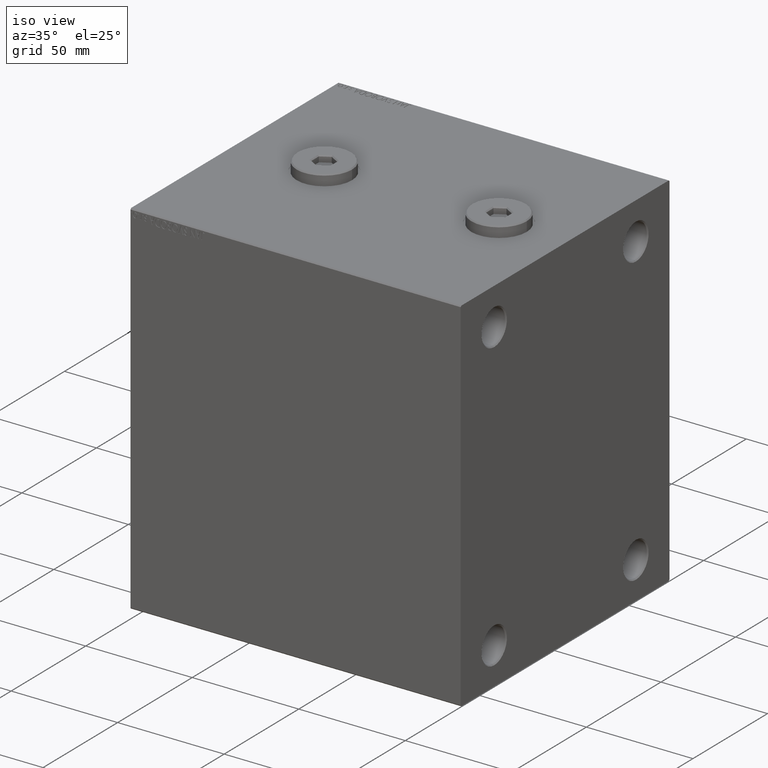
[diagram: clean part render]
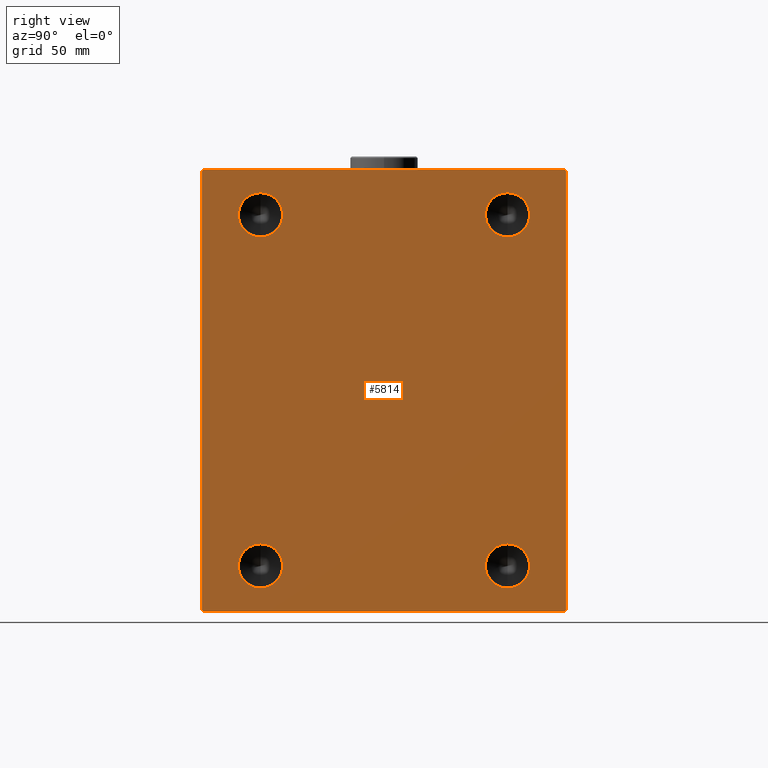
[diagram: tour spotlight — one face highlighted and labeled with its STEP entity id]
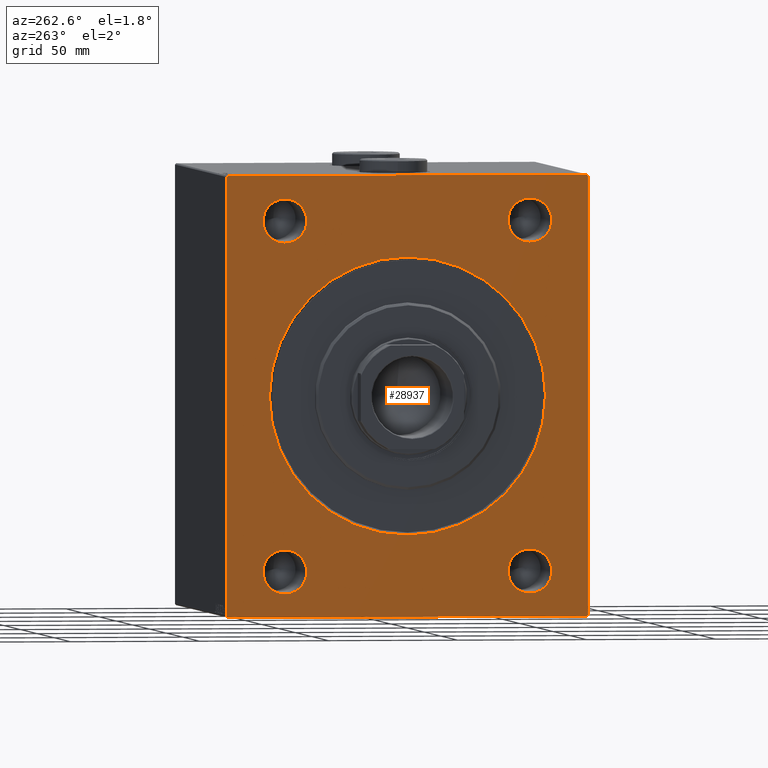
[diagram: tour spotlight — one face highlighted and labeled with its STEP entity id]
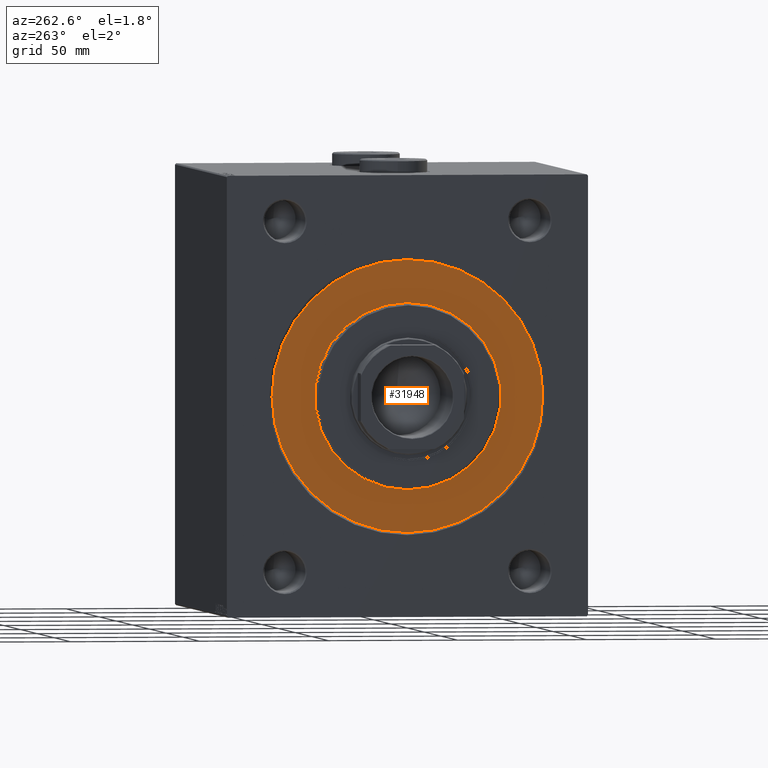
[diagram: tour spotlight — one face highlighted and labeled with its STEP entity id]
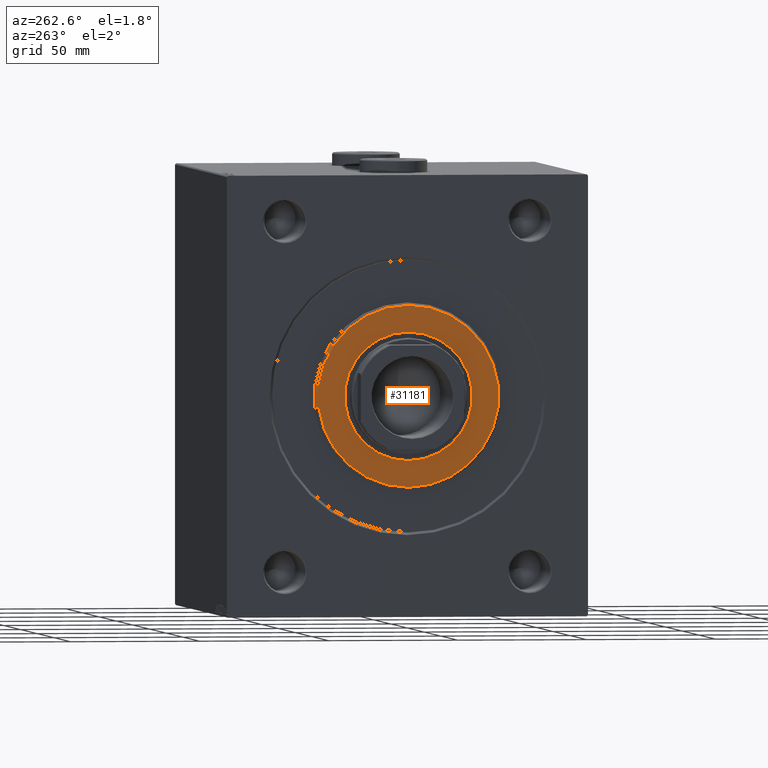
[diagram: tour spotlight — one face highlighted and labeled with its STEP entity id]
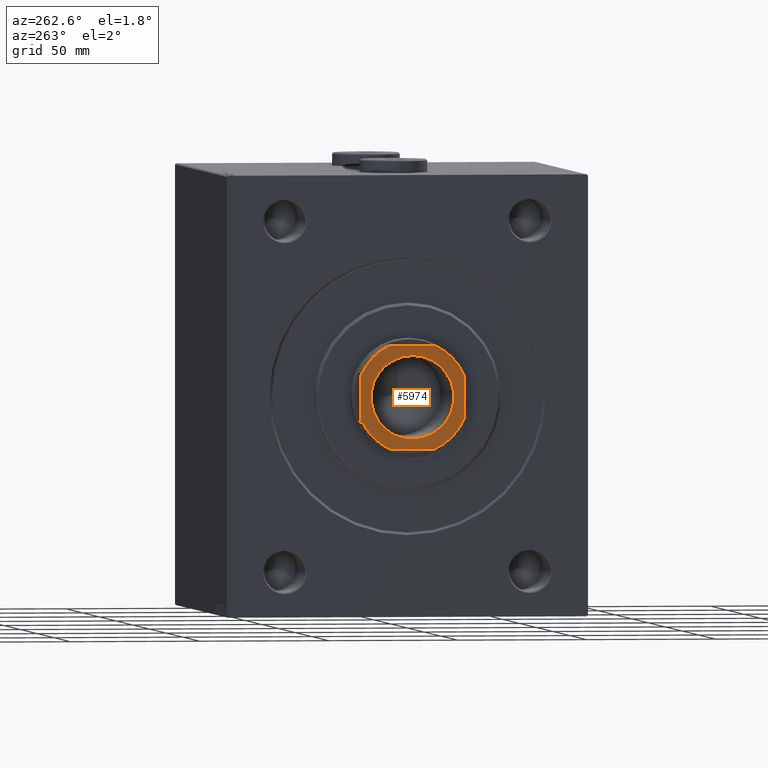
[diagram: tour spotlight — one face highlighted and labeled with its STEP entity id]
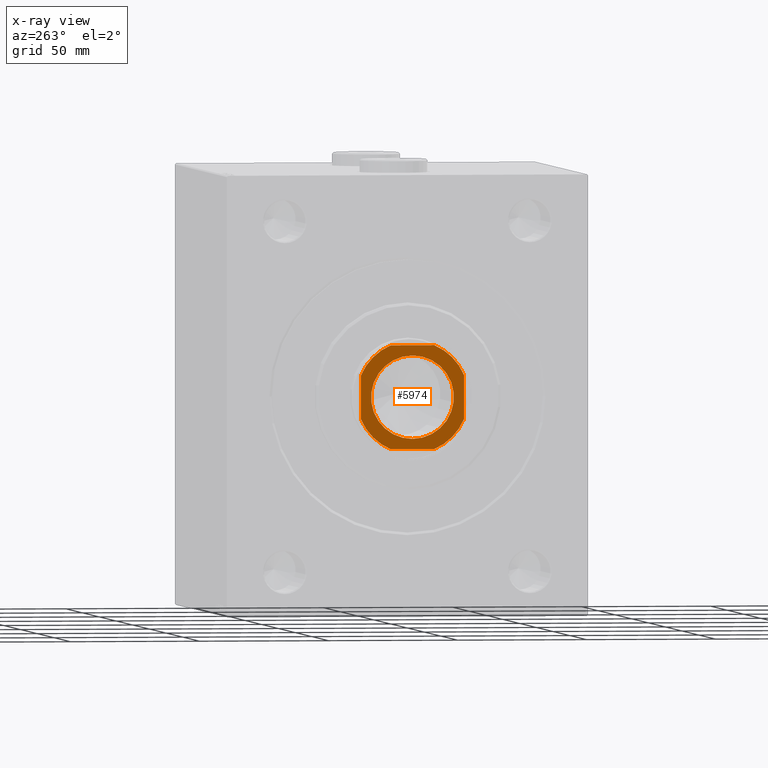
[diagram: x-ray of the same camera — body ghosted, this tour face saturated]
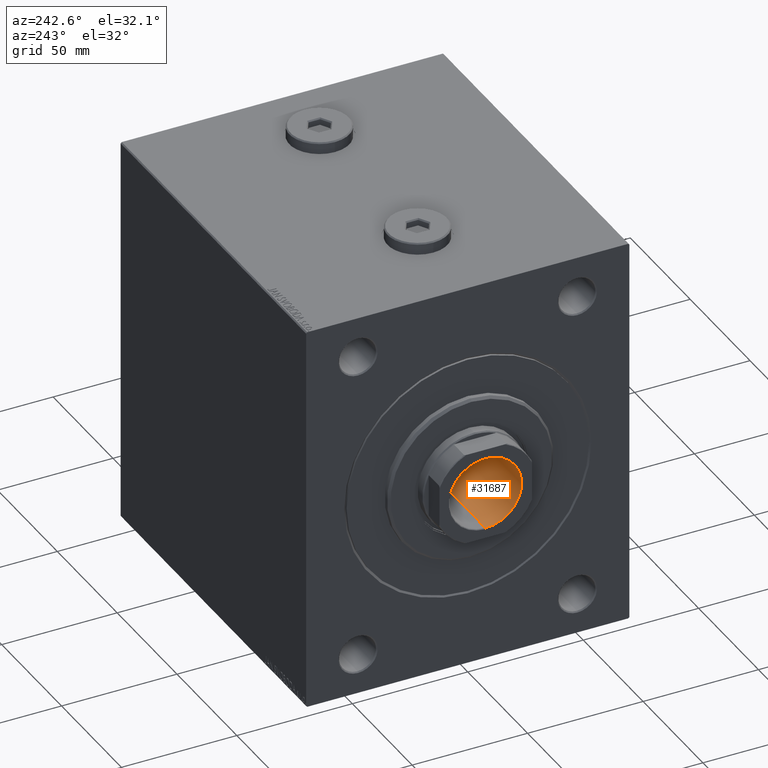
[diagram: tour spotlight — one face highlighted and labeled with its STEP entity id]
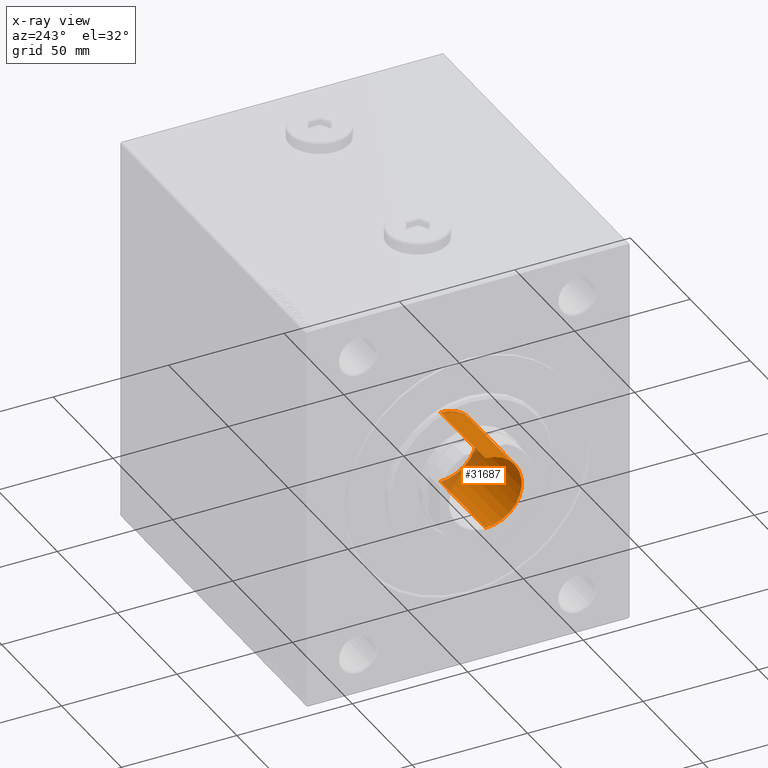
[diagram: x-ray of the same camera — body ghosted, this tour face saturated]
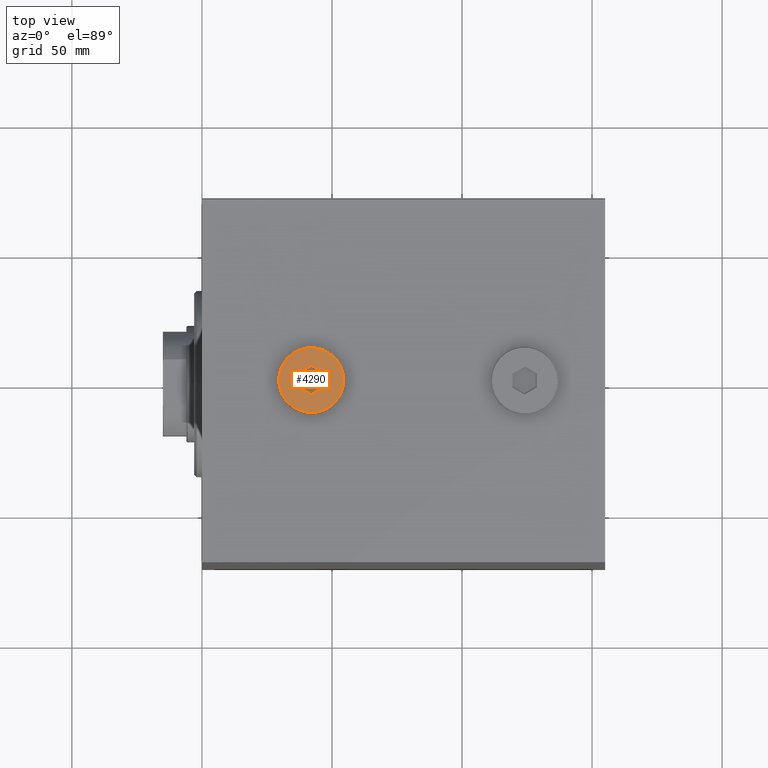
[diagram: tour spotlight — one face highlighted and labeled with its STEP entity id]
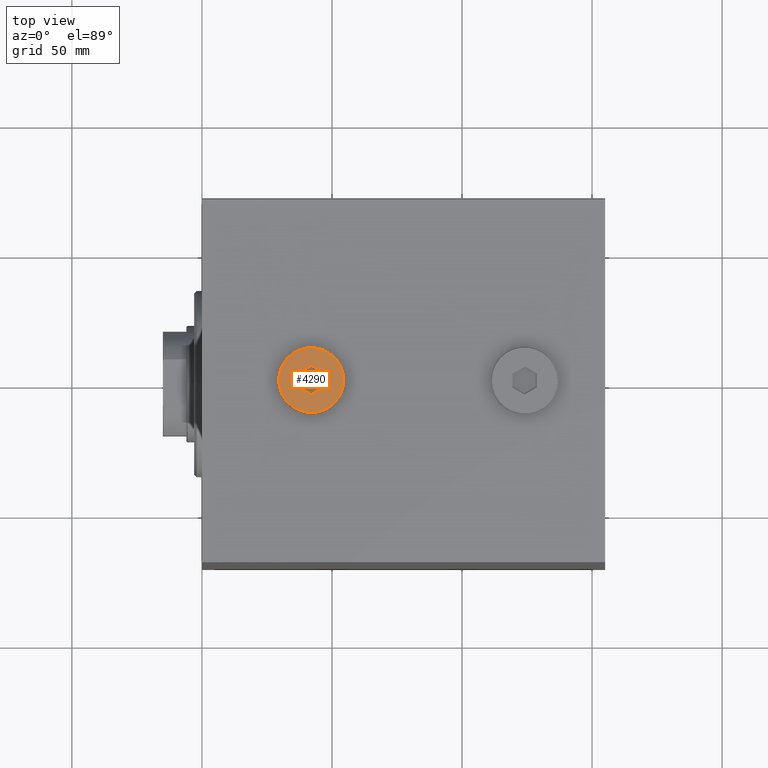
[diagram: tour spotlight — one face highlighted and labeled with its STEP entity id]
A machine part: a face-by-face anatomy tour. The part has 938 B-rep faces; the first image is the clean iso view, then the 8 largest visible faces are spotlighted one at a time (largest first), each with its STEP entity span.

Face 1 — right view, entity #5814. In plain terms, the highlighted planar face has unit normal (1, 0, 0).
Definition (entity closure, byte-faithful):
#318 = AXIS2_PLACEMENT_3D ( 'NONE', #24753, #17799, #31905 ) ;
#410 = VERTEX_POINT ( 'NONE', #34284 ) ;
#529 = CARTESIAN_POINT ( 'NONE',  ( 155.0000000000000000, 70.00000000000000000, 84.49999999999997158 ) ) ;
#1439 = CARTESIAN_POINT ( 'NONE',  ( 155.0000000000000000, -77.25000000000098055, -77.24999999999883471 ) ) ;
#1772 = CARTESIAN_POINT ( 'NONE',  ( 155.0000000000000000, 77.25000000000289901, 77.24999999999647571 ) ) ;
#1803 = EDGE_LOOP ( 'NONE', ( #16250, #43395 ) ) ;
#2149 = CARTESIAN_POINT ( 'NONE',  ( 155.0000000000000000, 70.00000000000001421, -84.50000000000000000 ) ) ;
#2520 = CARTESIAN_POINT ( 'NONE',  ( 155.0000000000000000, 47.50000000000000000, -67.50000000000001421 ) ) ;
#2722 = CARTESIAN_POINT ( 'NONE',  ( 155.0000000000000000, -70.00000000000000000, 84.49999999999998579 ) ) ;
#3500 = DIRECTION ( 'NONE',  ( 0.000000000000000000, 0.000000000000000000, -1.000000000000000000 ) ) ;
#3527 = ORIENTED_EDGE ( 'NONE', *, *, #44803, .T. ) ;
#3528 = VERTEX_POINT ( 'NONE', #7905 ) ;
#4568 = VECTOR ( 'NONE', #37628, 1000.000000000000000 ) ;
#5063 = DIRECTION ( 'NONE',  ( 0.000000000000000000, 0.000000000000000000, -1.000000000000000000 ) ) ;
#5551 = CARTESIAN_POINT ( 'NONE',  ( 155.0000000000000000, 69.50000000000000000, -85.00000000000000000 ) ) ;
#5678 = VERTEX_POINT ( 'NONE', #35171 ) ;
#5757 = LINE ( 'NONE', #26540, #37706 ) ;
#5814 = ADVANCED_FACE ( 'NONE', ( #45286, #9914, #16160, #27722, #20322 ), #30259, .T. ) ;
#6007 = CARTESIAN_POINT ( 'NONE',  ( 155.0000000000000000, 0.000000000000000000, 0.000000000000000000 ) ) ;
#6657 = CIRCLE ( 'NONE', #32470, 8.500000000000007105 ) ;
#6690 = CIRCLE ( 'NONE', #24395, 8.500000000000007105 ) ;
#7598 = VECTOR ( 'NONE', #24429, 1000.000000000000000 ) ;
#7608 = EDGE_LOOP ( 'NONE', ( #38762, #34955 ) ) ;
#7629 = EDGE_CURVE ( 'NONE', #10999, #410, #34728, .T. ) ;
#7905 = CARTESIAN_POINT ( 'NONE',  ( 155.0000000000000000, -47.50000000000000000, 76.00000000000001421 ) ) ;
#8346 = VECTOR ( 'NONE', #43737, 999.9999999999998863 ) ;
#8478 = VECTOR ( 'NONE', #13149, 1000.000000000000000 ) ;
#8886 = ORIENTED_EDGE ( 'NONE', *, *, #12227, .T. ) ;
#9054 = LINE ( 'NONE', #1439, #8346 ) ;
#9914 = FACE_BOUND ( 'NONE', #17831, .T. ) ;
#10142 = DIRECTION ( 'NONE',  ( 0.000000000000000000, 0.000000000000000000, -1.000000000000000000 ) ) ;
#10999 = VERTEX_POINT ( 'NONE', #17879 ) ;
#11237 = DIRECTION ( 'NONE',  ( 0.000000000000000000, -8.163404592832031500E-17, 1.000000000000000000 ) ) ;
#11282 = VERTEX_POINT ( 'NONE', #2149 ) ;
#11336 = DIRECTION ( 'NONE',  ( 1.000000000000000000, -0.000000000000000000, -0.000000000000000000 ) ) ;
#11357 = VERTEX_POINT ( 'NONE', #30571 ) ;
#11788 = DIRECTION ( 'NONE',  ( 0.000000000000000000, 0.000000000000000000, -1.000000000000000000 ) ) ;
#12095 = VERTEX_POINT ( 'NONE', #42673 ) ;
#12227 = EDGE_CURVE ( 'NONE', #11282, #35509, #42906, .T. ) ;
#13149 = DIRECTION ( 'NONE',  ( 0.000000000000000000, -0.7071067811865672237, -0.7071067811865279218 ) ) ;
#13802 = LINE ( 'NONE', #14028, #7598 ) ;
#14028 = CARTESIAN_POINT ( 'NONE',  ( 155.0000000000000000, 70.00000000000000000, 85.00000000000001421 ) ) ;
#14270 = EDGE_CURVE ( 'NONE', #18047, #11282, #21148, .T. ) ;
#15321 = VERTEX_POINT ( 'NONE', #17091 ) ;
#15482 = VERTEX_POINT ( 'NONE', #2722 ) ;
#16160 = FACE_BOUND ( 'NONE', #7608, .T. ) ;
#16250 = ORIENTED_EDGE ( 'NONE', *, *, #25022, .F. ) ;
#16762 = EDGE_CURVE ( 'NONE', #410, #10999, #28260, .T. ) ;
#16846 = CARTESIAN_POINT ( 'NONE',  ( 155.0000000000000000, -77.24999999999803890, 77.25000000000234479 ) ) ;
#17091 = CARTESIAN_POINT ( 'NONE',  ( 155.0000000000000000, 69.50000000000000000, 85.00000000000001421 ) ) ;
#17799 = DIRECTION ( 'NONE',  ( 1.000000000000000000, -0.000000000000000000, -0.000000000000000000 ) ) ;
#17831 = EDGE_LOOP ( 'NONE', ( #31698, #32537 ) ) ;
#17879 = CARTESIAN_POINT ( 'NONE',  ( 155.0000000000000000, -47.50000000000000000, -76.00000000000004263 ) ) ;
#18047 = VERTEX_POINT ( 'NONE', #5551 ) ;
#18212 = VERTEX_POINT ( 'NONE', #34874 ) ;
#18317 = VERTEX_POINT ( 'NONE', #29514 ) ;
#18625 = EDGE_CURVE ( 'NONE', #18317, #24199, #9054, .T. ) ;
#19444 = DIRECTION ( 'NONE',  ( 1.000000000000000000, -0.000000000000000000, -0.000000000000000000 ) ) ;
#20322 = FACE_OUTER_BOUND ( 'NONE', #28303, .T. ) ;
#21148 = LINE ( 'NONE', #42181, #22996 ) ;
#21602 = CARTESIAN_POINT ( 'NONE',  ( 155.0000000000000000, -47.50000000000000000, -67.50000000000001421 ) ) ;
#22030 = ORIENTED_EDGE ( 'NONE', *, *, #41356, .T. ) ;
#22034 = DIRECTION ( 'NONE',  ( -0.000000000000000000, 0.7071067811865574537, 0.7071067811865376918 ) ) ;
#22884 = EDGE_CURVE ( 'NONE', #5678, #15482, #30260, .T. ) ;
#22996 = VECTOR ( 'NONE', #22034, 999.9999999999998863 ) ;
#23230 = VECTOR ( 'NONE', #43368, 1000.000000000000000 ) ;
#24199 = VERTEX_POINT ( 'NONE', #30710 ) ;
#24395 = AXIS2_PLACEMENT_3D ( 'NONE', #35124, #38823, #32099 ) ;
#24429 = DIRECTION ( 'NONE',  ( 0.000000000000000000, -1.000000000000000000, -1.982541115402065110E-16 ) ) ;
#24753 = CARTESIAN_POINT ( 'NONE',  ( 155.0000000000000000, 47.50000000000000000, -67.50000000000001421 ) ) ;
#25022 = EDGE_CURVE ( 'NONE', #11357, #33844, #28351, .T. ) ;
#25496 = AXIS2_PLACEMENT_3D ( 'NONE', #36301, #11336, #11788 ) ;
#25604 = DIRECTION ( 'NONE',  ( 1.000000000000000000, -0.000000000000000000, -0.000000000000000000 ) ) ;
#25793 = LINE ( 'NONE', #1772, #23230 ) ;
#26540 = CARTESIAN_POINT ( 'NONE',  ( 155.0000000000000000, -70.00000000000000000, -85.00000000000000000 ) ) ;
#26636 = AXIS2_PLACEMENT_3D ( 'NONE', #43400, #25604, #36012 ) ;
#26914 = VERTEX_POINT ( 'NONE', #35304 ) ;
#26998 = CIRCLE ( 'NONE', #25496, 8.500000000000007105 ) ;
#27025 = EDGE_CURVE ( 'NONE', #35509, #15321, #25793, .T. ) ;
#27335 = AXIS2_PLACEMENT_3D ( 'NONE', #31677, #27770, #3500 ) ;
#27559 = ORIENTED_EDGE ( 'NONE', *, *, #14270, .T. ) ;
#27722 = FACE_BOUND ( 'NONE', #1803, .T. ) ;
#27770 = DIRECTION ( 'NONE',  ( 1.000000000000000000, -0.000000000000000000, -0.000000000000000000 ) ) ;
#28260 = CIRCLE ( 'NONE', #34156, 8.500000000000007105 ) ;
#28303 = EDGE_LOOP ( 'NONE', ( #3527, #36181, #22030, #43528, #30735, #27559, #8886, #34367 ) ) ;
#28314 = DIRECTION ( 'NONE',  ( 0.000000000000000000, 0.000000000000000000, -1.000000000000000000 ) ) ;
#28351 = CIRCLE ( 'NONE', #318, 8.500000000000007105 ) ;
#29225 = EDGE_CURVE ( 'NONE', #26914, #3528, #26998, .T. ) ;
#29514 = CARTESIAN_POINT ( 'NONE',  ( 155.0000000000000000, -70.00000000000000000, -84.49999999999998579 ) ) ;
#29572 = VECTOR ( 'NONE', #11237, 1000.000000000000000 ) ;
#29576 = CIRCLE ( 'NONE', #26636, 8.500000000000007105 ) ;
#30259 = PLANE ( 'NONE',  #45022 ) ;
#30260 = LINE ( 'NONE', #16846, #8478 ) ;
#30469 = LINE ( 'NONE', #44576, #4568 ) ;
#30571 = CARTESIAN_POINT ( 'NONE',  ( 155.0000000000000000, 47.50000000000000000, -59.00000000000000000 ) ) ;
#30710 = CARTESIAN_POINT ( 'NONE',  ( 155.0000000000000000, -69.50000000000000000, -85.00000000000000000 ) ) ;
#30711 = DIRECTION ( 'NONE',  ( 1.000000000000000000, -0.000000000000000000, -0.000000000000000000 ) ) ;
#30735 = ORIENTED_EDGE ( 'NONE', *, *, #34860, .T. ) ;
#31677 = CARTESIAN_POINT ( 'NONE',  ( 155.0000000000000000, -47.50000000000000000, -67.50000000000001421 ) ) ;
#31698 = ORIENTED_EDGE ( 'NONE', *, *, #35665, .F. ) ;
#31905 = DIRECTION ( 'NONE',  ( 0.000000000000000000, 0.000000000000000000, -1.000000000000000000 ) ) ;
#32099 = DIRECTION ( 'NONE',  ( 0.000000000000000000, 0.000000000000000000, -1.000000000000000000 ) ) ;
#32470 = AXIS2_PLACEMENT_3D ( 'NONE', #2520, #30711, #5063 ) ;
#32537 = ORIENTED_EDGE ( 'NONE', *, *, #29225, .F. ) ;
#32987 = EDGE_LOOP ( 'NONE', ( #35016, #35004 ) ) ;
#33371 = EDGE_CURVE ( 'NONE', #33844, #11357, #6657, .T. ) ;
#33844 = VERTEX_POINT ( 'NONE', #41204 ) ;
#34156 = AXIS2_PLACEMENT_3D ( 'NONE', #21602, #35708, #28314 ) ;
#34284 = CARTESIAN_POINT ( 'NONE',  ( 155.0000000000000000, -47.50000000000000000, -59.00000000000000000 ) ) ;
#34367 = ORIENTED_EDGE ( 'NONE', *, *, #27025, .T. ) ;
#34728 = CIRCLE ( 'NONE', #27335, 8.500000000000007105 ) ;
#34860 = EDGE_CURVE ( 'NONE', #24199, #18047, #5757, .T. ) ;
#34874 = CARTESIAN_POINT ( 'NONE',  ( 155.0000000000000000, 47.50000000000000000, 76.00000000000001421 ) ) ;
#34955 = ORIENTED_EDGE ( 'NONE', *, *, #7629, .F. ) ;
#35004 = ORIENTED_EDGE ( 'NONE', *, *, #39406, .F. ) ;
#35016 = ORIENTED_EDGE ( 'NONE', *, *, #38520, .F. ) ;
#35124 = CARTESIAN_POINT ( 'NONE',  ( 155.0000000000000000, 47.50000000000000000, 67.49999999999998579 ) ) ;
#35171 = CARTESIAN_POINT ( 'NONE',  ( 155.0000000000000000, -69.49999999999997158, 84.99999999999998579 ) ) ;
#35304 = CARTESIAN_POINT ( 'NONE',  ( 155.0000000000000000, -47.50000000000000000, 58.99999999999997158 ) ) ;
#35509 = VERTEX_POINT ( 'NONE', #529 ) ;
#35665 = EDGE_CURVE ( 'NONE', #3528, #26914, #44364, .T. ) ;
#35708 = DIRECTION ( 'NONE',  ( 1.000000000000000000, -0.000000000000000000, -0.000000000000000000 ) ) ;
#36012 = DIRECTION ( 'NONE',  ( 0.000000000000000000, 0.000000000000000000, -1.000000000000000000 ) ) ;
#36181 = ORIENTED_EDGE ( 'NONE', *, *, #22884, .T. ) ;
#36301 = CARTESIAN_POINT ( 'NONE',  ( 155.0000000000000000, -47.50000000000000000, 67.49999999999998579 ) ) ;
#37021 = CARTESIAN_POINT ( 'NONE',  ( 155.0000000000000000, -47.50000000000000000, 67.49999999999998579 ) ) ;
#37628 = DIRECTION ( 'NONE',  ( 0.000000000000000000, 0.000000000000000000, -1.000000000000000000 ) ) ;
#37706 = VECTOR ( 'NONE', #40650, 1000.000000000000000 ) ;
#38520 = EDGE_CURVE ( 'NONE', #18212, #12095, #6690, .T. ) ;
#38762 = ORIENTED_EDGE ( 'NONE', *, *, #16762, .F. ) ;
#38823 = DIRECTION ( 'NONE',  ( 1.000000000000000000, -0.000000000000000000, -0.000000000000000000 ) ) ;
#39406 = EDGE_CURVE ( 'NONE', #12095, #18212, #29576, .T. ) ;
#39936 = AXIS2_PLACEMENT_3D ( 'NONE', #37021, #19444, #43481 ) ;
#40650 = DIRECTION ( 'NONE',  ( 0.000000000000000000, 1.000000000000000000, 0.000000000000000000 ) ) ;
#41204 = CARTESIAN_POINT ( 'NONE',  ( 155.0000000000000000, 47.50000000000000000, -76.00000000000004263 ) ) ;
#41356 = EDGE_CURVE ( 'NONE', #15482, #18317, #30469, .T. ) ;
#42181 = CARTESIAN_POINT ( 'NONE',  ( 155.0000000000000000, 77.24999999999904787, -77.25000000000119371 ) ) ;
#42673 = CARTESIAN_POINT ( 'NONE',  ( 155.0000000000000000, 47.50000000000000000, 58.99999999999997158 ) ) ;
#42906 = LINE ( 'NONE', #43351, #29572 ) ;
#43351 = CARTESIAN_POINT ( 'NONE',  ( 155.0000000000000000, 70.00000000000001421, -85.00000000000000000 ) ) ;
#43368 = DIRECTION ( 'NONE',  ( -0.000000000000000000, -0.7071067811865181518, 0.7071067811865769936 ) ) ;
#43395 = ORIENTED_EDGE ( 'NONE', *, *, #33371, .F. ) ;
#43400 = CARTESIAN_POINT ( 'NONE',  ( 155.0000000000000000, 47.50000000000000000, 67.49999999999998579 ) ) ;
#43481 = DIRECTION ( 'NONE',  ( 0.000000000000000000, 0.000000000000000000, -1.000000000000000000 ) ) ;
#43528 = ORIENTED_EDGE ( 'NONE', *, *, #18625, .T. ) ;
#43737 = DIRECTION ( 'NONE',  ( -0.000000000000000000, 0.7071067811865376918, -0.7071067811865574537 ) ) ;
#44364 = CIRCLE ( 'NONE', #39936, 8.500000000000007105 ) ;
#44576 = CARTESIAN_POINT ( 'NONE',  ( 155.0000000000000000, -70.00000000000000000, 84.99999999999998579 ) ) ;
#44803 = EDGE_CURVE ( 'NONE', #15321, #5678, #13802, .T. ) ;
#44830 = DIRECTION ( 'NONE',  ( 1.000000000000000000, 0.000000000000000000, 0.000000000000000000 ) ) ;
#45022 = AXIS2_PLACEMENT_3D ( 'NONE', #6007, #44830, #10142 ) ;
#45286 = FACE_BOUND ( 'NONE', #32987, .T. ) ;

Face 2 — auxiliary view, entity #28937. In plain terms, the highlighted planar face has unit normal (1, 0, 0).
Definition (entity closure, byte-faithful):
#264 = AXIS2_PLACEMENT_3D ( 'NONE', #12491, #23358, #5804 ) ;
#712 = VECTOR ( 'NONE', #12734, 999.9999999999998863 ) ;
#887 = CARTESIAN_POINT ( 'NONE',  ( 0.000000000000000000, -69.50000000000000000, -85.00000000000000000 ) ) ;
#1355 = ORIENTED_EDGE ( 'NONE', *, *, #15760, .T. ) ;
#2216 = VERTEX_POINT ( 'NONE', #25578 ) ;
#2375 = LINE ( 'NONE', #24069, #21397 ) ;
#2387 = CARTESIAN_POINT ( 'NONE',  ( 0.000000000000000000, 47.50000000000000000, -59.00000000000001421 ) ) ;
#2686 = CARTESIAN_POINT ( 'NONE',  ( 0.000000000000000000, 0.000000000000000000, 0.000000000000000000 ) ) ;
#3224 = VECTOR ( 'NONE', #43858, 999.9999999999998863 ) ;
#3351 = FACE_OUTER_BOUND ( 'NONE', #12901, .T. ) ;
#3635 = ORIENTED_EDGE ( 'NONE', *, *, #6385, .T. ) ;
#4104 = AXIS2_PLACEMENT_3D ( 'NONE', #37043, #8146, #32875 ) ;
#4421 = ORIENTED_EDGE ( 'NONE', *, *, #38363, .F. ) ;
#5345 = EDGE_LOOP ( 'NONE', ( #33109, #19350 ) ) ;
#5377 = DIRECTION ( 'NONE',  ( 1.000000000000000000, 0.000000000000000000, 0.000000000000000000 ) ) ;
#5512 = CARTESIAN_POINT ( 'NONE',  ( 0.000000000000000000, 69.50000000000000000, 85.00000000000001421 ) ) ;
#5804 = DIRECTION ( 'NONE',  ( 0.000000000000000000, 0.000000000000000000, -1.000000000000000000 ) ) ;
#5955 = CARTESIAN_POINT ( 'NONE',  ( 0.000000000000000000, -69.49999999999997158, 84.99999999999998579 ) ) ;
#6255 = ORIENTED_EDGE ( 'NONE', *, *, #19391, .T. ) ;
#6385 = EDGE_CURVE ( 'NONE', #31648, #26927, #8843, .T. ) ;
#6665 = EDGE_CURVE ( 'NONE', #40750, #19947, #2375, .T. ) ;
#6808 = FACE_BOUND ( 'NONE', #25267, .T. ) ;
#7377 = EDGE_LOOP ( 'NONE', ( #25499, #1355 ) ) ;
#7428 = DIRECTION ( 'NONE',  ( 1.000000000000000000, 0.000000000000000000, 0.000000000000000000 ) ) ;
#7596 = CARTESIAN_POINT ( 'NONE',  ( 0.000000000000000000, 47.50000000000000000, -76.00000000000002842 ) ) ;
#7627 = CIRCLE ( 'NONE', #17950, 8.500000000000007105 ) ;
#7649 = DIRECTION ( 'NONE',  ( 1.000000000000000000, 0.000000000000000000, 0.000000000000000000 ) ) ;
#7974 = DIRECTION ( 'NONE',  ( 0.000000000000000000, 0.000000000000000000, -1.000000000000000000 ) ) ;
#7991 = CARTESIAN_POINT ( 'NONE',  ( 0.000000000000000000, 69.50000000000000000, 85.00000000000001421 ) ) ;
#8146 = DIRECTION ( 'NONE',  ( 1.000000000000000000, 0.000000000000000000, 0.000000000000000000 ) ) ;
#8188 = DIRECTION ( 'NONE',  ( -0.000000000000000000, 0.7071067811865672237, 0.7071067811865279218 ) ) ;
#8281 = AXIS2_PLACEMENT_3D ( 'NONE', #19762, #33629, #16973 ) ;
#8550 = VERTEX_POINT ( 'NONE', #21120 ) ;
#8843 = CIRCLE ( 'NONE', #31722, 8.500000000000007105 ) ;
#9120 = ORIENTED_EDGE ( 'NONE', *, *, #21321, .T. ) ;
#10775 = EDGE_LOOP ( 'NONE', ( #3635, #28026 ) ) ;
#11115 = CARTESIAN_POINT ( 'NONE',  ( 0.000000000000000000, -47.50000000000000000, -67.50000000000001421 ) ) ;
#11118 = DIRECTION ( 'NONE',  ( 0.000000000000000000, 0.000000000000000000, -1.000000000000000000 ) ) ;
#11400 = EDGE_CURVE ( 'NONE', #32837, #41531, #18470, .T. ) ;
#11831 = CARTESIAN_POINT ( 'NONE',  ( 0.000000000000000000, 0.000000000000000000, 0.000000000000000000 ) ) ;
#12134 = CARTESIAN_POINT ( 'NONE',  ( 0.000000000000000000, 47.50000000000000000, -67.50000000000001421 ) ) ;
#12491 = CARTESIAN_POINT ( 'NONE',  ( 0.000000000000000000, -47.50000000000000000, 67.49999999999998579 ) ) ;
#12665 = EDGE_CURVE ( 'NONE', #26927, #31648, #28842, .T. ) ;
#12734 = DIRECTION ( 'NONE',  ( 0.000000000000000000, -0.7071067811865574537, -0.7071067811865376918 ) ) ;
#12897 = VERTEX_POINT ( 'NONE', #7596 ) ;
#12901 = EDGE_LOOP ( 'NONE', ( #4421, #9120, #14321, #42003, #13112, #17252, #16363, #23717 ) ) ;
#13112 = ORIENTED_EDGE ( 'NONE', *, *, #34222, .F. ) ;
#13293 = DIRECTION ( 'NONE',  ( 0.000000000000000000, 0.000000000000000000, -1.000000000000000000 ) ) ;
#13417 = VERTEX_POINT ( 'NONE', #41940 ) ;
#13691 = CARTESIAN_POINT ( 'NONE',  ( 0.000000000000000000, -47.50000000000000000, 67.49999999999998579 ) ) ;
#13964 = CARTESIAN_POINT ( 'NONE',  ( 0.000000000000000000, -70.00000000000000000, -85.00000000000000000 ) ) ;
#14321 = ORIENTED_EDGE ( 'NONE', *, *, #6665, .F. ) ;
#14492 = CARTESIAN_POINT ( 'NONE',  ( 0.000000000000000000, 47.50000000000000000, 58.99999999999998579 ) ) ;
#15398 = EDGE_CURVE ( 'NONE', #40750, #8550, #22138, .T. ) ;
#15639 = CIRCLE ( 'NONE', #8281, 8.500000000000007105 ) ;
#15707 = AXIS2_PLACEMENT_3D ( 'NONE', #11831, #5377, #39801 ) ;
#15760 = EDGE_CURVE ( 'NONE', #41426, #25318, #15639, .T. ) ;
#15812 = CARTESIAN_POINT ( 'NONE',  ( 0.000000000000000000, -70.00000000000000000, 84.49999999999998579 ) ) ;
#16363 = ORIENTED_EDGE ( 'NONE', *, *, #29736, .F. ) ;
#16441 = AXIS2_PLACEMENT_3D ( 'NONE', #2686, #16545, #13293 ) ;
#16459 = DIRECTION ( 'NONE',  ( 0.000000000000000000, -1.000000000000000000, -1.982541115402065110E-16 ) ) ;
#16545 = DIRECTION ( 'NONE',  ( 1.000000000000000000, 0.000000000000000000, 0.000000000000000000 ) ) ;
#16973 = DIRECTION ( 'NONE',  ( 0.000000000000000000, 0.000000000000000000, -1.000000000000000000 ) ) ;
#17252 = ORIENTED_EDGE ( 'NONE', *, *, #32281, .T. ) ;
#17657 = EDGE_CURVE ( 'NONE', #41090, #2216, #36368, .T. ) ;
#17950 = AXIS2_PLACEMENT_3D ( 'NONE', #12134, #28793, #7974 ) ;
#18470 = CIRCLE ( 'NONE', #25828, 8.500000000000007105 ) ;
#18655 = EDGE_CURVE ( 'NONE', #2216, #41090, #29734, .T. ) ;
#18776 = DIRECTION ( 'NONE',  ( 0.000000000000000000, 0.000000000000000000, -1.000000000000000000 ) ) ;
#19087 = EDGE_CURVE ( 'NONE', #20666, #25672, #39698, .T. ) ;
#19122 = DIRECTION ( 'NONE',  ( -0.000000000000000000, 0.7071067811865181518, -0.7071067811865769936 ) ) ;
#19350 = ORIENTED_EDGE ( 'NONE', *, *, #17657, .T. ) ;
#19391 = EDGE_CURVE ( 'NONE', #29836, #12897, #7627, .T. ) ;
#19762 = CARTESIAN_POINT ( 'NONE',  ( 0.000000000000000000, 47.50000000000000000, 67.49999999999998579 ) ) ;
#19947 = VERTEX_POINT ( 'NONE', #5955 ) ;
#20469 = CARTESIAN_POINT ( 'NONE',  ( 0.000000000000000000, 47.50000000000000000, -67.50000000000001421 ) ) ;
#20666 = VERTEX_POINT ( 'NONE', #34177 ) ;
#20893 = FACE_BOUND ( 'NONE', #7377, .T. ) ;
#21120 = CARTESIAN_POINT ( 'NONE',  ( 0.000000000000000000, 70.00000000000000000, 84.49999999999997158 ) ) ;
#21163 = DIRECTION ( 'NONE',  ( 1.000000000000000000, 0.000000000000000000, 0.000000000000000000 ) ) ;
#21321 = EDGE_CURVE ( 'NONE', #22023, #19947, #44014, .T. ) ;
#21397 = VECTOR ( 'NONE', #16459, 1000.000000000000000 ) ;
#21736 = DIRECTION ( 'NONE',  ( 1.000000000000000000, 0.000000000000000000, 0.000000000000000000 ) ) ;
#21751 = DIRECTION ( 'NONE',  ( 0.000000000000000000, 0.000000000000000000, -1.000000000000000000 ) ) ;
#21950 = DIRECTION ( 'NONE',  ( 0.000000000000000000, 0.000000000000000000, -1.000000000000000000 ) ) ;
#22023 = VERTEX_POINT ( 'NONE', #30720 ) ;
#22138 = LINE ( 'NONE', #5512, #33352 ) ;
#22328 = CARTESIAN_POINT ( 'NONE',  ( 0.000000000000000000, 70.00000000000001421, -85.00000000000000000 ) ) ;
#22577 = CARTESIAN_POINT ( 'NONE',  ( 0.000000000000000000, 47.50000000000000000, 76.00000000000000000 ) ) ;
#23023 = CARTESIAN_POINT ( 'NONE',  ( 0.000000000000000000, -47.50000000000000000, 58.99999999999998579 ) ) ;
#23358 = DIRECTION ( 'NONE',  ( 1.000000000000000000, 0.000000000000000000, 0.000000000000000000 ) ) ;
#23717 = ORIENTED_EDGE ( 'NONE', *, *, #19087, .T. ) ;
#24069 = CARTESIAN_POINT ( 'NONE',  ( 0.000000000000000000, 70.00000000000000000, 85.00000000000001421 ) ) ;
#24355 = FACE_BOUND ( 'NONE', #5345, .T. ) ;
#24678 = CARTESIAN_POINT ( 'NONE',  ( 0.000000000000000000, -47.50000000000000000, -76.00000000000002842 ) ) ;
#24725 = CIRCLE ( 'NONE', #43891, 8.500000000000007105 ) ;
#24819 = CARTESIAN_POINT ( 'NONE',  ( 0.000000000000000000, -47.50000000000000000, -67.50000000000001421 ) ) ;
#25267 = EDGE_LOOP ( 'NONE', ( #36484, #38284 ) ) ;
#25318 = VERTEX_POINT ( 'NONE', #22577 ) ;
#25499 = ORIENTED_EDGE ( 'NONE', *, *, #25878, .T. ) ;
#25578 = CARTESIAN_POINT ( 'NONE',  ( 0.000000000000000000, 0.000000000000000000, 53.50000000000000000 ) ) ;
#25672 = VERTEX_POINT ( 'NONE', #29921 ) ;
#25828 = AXIS2_PLACEMENT_3D ( 'NONE', #13691, #7428, #11118 ) ;
#25839 = ORIENTED_EDGE ( 'NONE', *, *, #35949, .T. ) ;
#25878 = EDGE_CURVE ( 'NONE', #25318, #41426, #24725, .T. ) ;
#26899 = VECTOR ( 'NONE', #8188, 1000.000000000000000 ) ;
#26927 = VERTEX_POINT ( 'NONE', #24678 ) ;
#27261 = LINE ( 'NONE', #30954, #42841 ) ;
#28026 = ORIENTED_EDGE ( 'NONE', *, *, #12665, .T. ) ;
#28069 = DIRECTION ( 'NONE',  ( 0.000000000000000000, 1.000000000000000000, 0.000000000000000000 ) ) ;
#28167 = VECTOR ( 'NONE', #28069, 1000.000000000000000 ) ;
#28793 = DIRECTION ( 'NONE',  ( 1.000000000000000000, 0.000000000000000000, 0.000000000000000000 ) ) ;
#28842 = CIRCLE ( 'NONE', #42183, 8.500000000000007105 ) ;
#28937 = ADVANCED_FACE ( 'NONE', ( #24355, #38467, #6808, #20893, #35008, #3351 ), #43978, .F. ) ;
#29734 = CIRCLE ( 'NONE', #15707, 53.50000000000000000 ) ;
#29736 = EDGE_CURVE ( 'NONE', #20666, #13417, #43072, .T. ) ;
#29836 = VERTEX_POINT ( 'NONE', #2387 ) ;
#29921 = CARTESIAN_POINT ( 'NONE',  ( 0.000000000000000000, -70.00000000000000000, -84.49999999999998579 ) ) ;
#30291 = LINE ( 'NONE', #33536, #712 ) ;
#30720 = CARTESIAN_POINT ( 'NONE',  ( 0.000000000000000000, -70.00000000000000000, 84.49999999999998579 ) ) ;
#30954 = CARTESIAN_POINT ( 'NONE',  ( 0.000000000000000000, -70.00000000000000000, 84.99999999999998579 ) ) ;
#30971 = CARTESIAN_POINT ( 'NONE',  ( 0.000000000000000000, 70.00000000000001421, -84.50000000000000000 ) ) ;
#31063 = VECTOR ( 'NONE', #39224, 1000.000000000000000 ) ;
#31648 = VERTEX_POINT ( 'NONE', #40932 ) ;
#31722 = AXIS2_PLACEMENT_3D ( 'NONE', #24819, #43060, #18776 ) ;
#32281 = EDGE_CURVE ( 'NONE', #36303, #13417, #30291, .T. ) ;
#32532 = CIRCLE ( 'NONE', #35530, 8.500000000000007105 ) ;
#32837 = VERTEX_POINT ( 'NONE', #23023 ) ;
#32875 = DIRECTION ( 'NONE',  ( 0.000000000000000000, 0.000000000000000000, -1.000000000000000000 ) ) ;
#33109 = ORIENTED_EDGE ( 'NONE', *, *, #18655, .T. ) ;
#33352 = VECTOR ( 'NONE', #19122, 1000.000000000000000 ) ;
#33536 = CARTESIAN_POINT ( 'NONE',  ( 0.000000000000000000, 70.00000000000001421, -84.50000000000000000 ) ) ;
#33629 = DIRECTION ( 'NONE',  ( 1.000000000000000000, 0.000000000000000000, 0.000000000000000000 ) ) ;
#33674 = EDGE_LOOP ( 'NONE', ( #6255, #25839 ) ) ;
#34177 = CARTESIAN_POINT ( 'NONE',  ( 0.000000000000000000, -69.50000000000000000, -85.00000000000000000 ) ) ;
#34222 = EDGE_CURVE ( 'NONE', #36303, #8550, #42470, .T. ) ;
#34653 = DIRECTION ( 'NONE',  ( 0.000000000000000000, 0.000000000000000000, -1.000000000000000000 ) ) ;
#35008 = FACE_BOUND ( 'NONE', #33674, .T. ) ;
#35530 = AXIS2_PLACEMENT_3D ( 'NONE', #20469, #21163, #41965 ) ;
#35595 = CARTESIAN_POINT ( 'NONE',  ( 0.000000000000000000, 6.551860375438339893E-15, -53.50000000000000000 ) ) ;
#35949 = EDGE_CURVE ( 'NONE', #12897, #29836, #32532, .T. ) ;
#36303 = VERTEX_POINT ( 'NONE', #30971 ) ;
#36368 = CIRCLE ( 'NONE', #16441, 53.50000000000000000 ) ;
#36484 = ORIENTED_EDGE ( 'NONE', *, *, #45451, .T. ) ;
#37043 = CARTESIAN_POINT ( 'NONE',  ( 0.000000000000000000, 0.000000000000000000, 0.000000000000000000 ) ) ;
#38284 = ORIENTED_EDGE ( 'NONE', *, *, #11400, .T. ) ;
#38363 = EDGE_CURVE ( 'NONE', #22023, #25672, #27261, .T. ) ;
#38467 = FACE_BOUND ( 'NONE', #10775, .T. ) ;
#39224 = DIRECTION ( 'NONE',  ( 0.000000000000000000, -8.163404592832031500E-17, 1.000000000000000000 ) ) ;
#39453 = CARTESIAN_POINT ( 'NONE',  ( 0.000000000000000000, -47.50000000000000000, 76.00000000000000000 ) ) ;
#39698 = LINE ( 'NONE', #887, #3224 ) ;
#39801 = DIRECTION ( 'NONE',  ( 0.000000000000000000, 0.000000000000000000, -1.000000000000000000 ) ) ;
#40095 = CIRCLE ( 'NONE', #264, 8.500000000000007105 ) ;
#40750 = VERTEX_POINT ( 'NONE', #7991 ) ;
#40932 = CARTESIAN_POINT ( 'NONE',  ( 0.000000000000000000, -47.50000000000000000, -59.00000000000001421 ) ) ;
#41090 = VERTEX_POINT ( 'NONE', #35595 ) ;
#41426 = VERTEX_POINT ( 'NONE', #14492 ) ;
#41531 = VERTEX_POINT ( 'NONE', #39453 ) ;
#41940 = CARTESIAN_POINT ( 'NONE',  ( 0.000000000000000000, 69.50000000000000000, -85.00000000000000000 ) ) ;
#41965 = DIRECTION ( 'NONE',  ( 0.000000000000000000, 0.000000000000000000, -1.000000000000000000 ) ) ;
#42003 = ORIENTED_EDGE ( 'NONE', *, *, #15398, .T. ) ;
#42183 = AXIS2_PLACEMENT_3D ( 'NONE', #11115, #7649, #21751 ) ;
#42470 = LINE ( 'NONE', #22328, #31063 ) ;
#42550 = CARTESIAN_POINT ( 'NONE',  ( 0.000000000000000000, 47.50000000000000000, 67.49999999999998579 ) ) ;
#42841 = VECTOR ( 'NONE', #34653, 1000.000000000000000 ) ;
#43060 = DIRECTION ( 'NONE',  ( 1.000000000000000000, 0.000000000000000000, 0.000000000000000000 ) ) ;
#43072 = LINE ( 'NONE', #13964, #28167 ) ;
#43858 = DIRECTION ( 'NONE',  ( -0.000000000000000000, -0.7071067811865376918, 0.7071067811865574537 ) ) ;
#43891 = AXIS2_PLACEMENT_3D ( 'NONE', #42550, #21736, #21950 ) ;
#43978 = PLANE ( 'NONE',  #4104 ) ;
#44014 = LINE ( 'NONE', #15812, #26899 ) ;
#45451 = EDGE_CURVE ( 'NONE', #41531, #32837, #40095, .T. ) ;

Face 3 — auxiliary view, entity #31948. In plain terms, the highlighted planar face has unit normal (1, -0, -0).
Definition (entity closure, byte-faithful):
#414 = CARTESIAN_POINT ( 'NONE',  ( 0.000000000000000000, 0.000000000000000000, 36.00000000000000000 ) ) ;
#610 = AXIS2_PLACEMENT_3D ( 'NONE', #20693, #24160, #13300 ) ;
#1023 = EDGE_CURVE ( 'NONE', #31305, #7223, #25671, .T. ) ;
#2507 = DIRECTION ( 'NONE',  ( -1.000000000000000000, 0.000000000000000000, 0.000000000000000000 ) ) ;
#2734 = FACE_OUTER_BOUND ( 'NONE', #29354, .T. ) ;
#2927 = AXIS2_PLACEMENT_3D ( 'NONE', #20059, #2507, #10961 ) ;
#3686 = AXIS2_PLACEMENT_3D ( 'NONE', #13736, #35229, #21129 ) ;
#6266 = EDGE_CURVE ( 'NONE', #11575, #16574, #32466, .T. ) ;
#7223 = VERTEX_POINT ( 'NONE', #9435 ) ;
#7259 = ORIENTED_EDGE ( 'NONE', *, *, #1023, .F. ) ;
#9250 = CARTESIAN_POINT ( 'NONE',  ( 0.000000000000000000, 6.429395695523603167E-15, 52.49999999999999289 ) ) ;
#9435 = CARTESIAN_POINT ( 'NONE',  ( 0.000000000000000000, 4.408728476930470856E-15, -36.00000000000000000 ) ) ;
#9637 = CIRCLE ( 'NONE', #39931, 36.00000000000000000 ) ;
#10493 = ORIENTED_EDGE ( 'NONE', *, *, #33701, .F. ) ;
#10961 = DIRECTION ( 'NONE',  ( 0.000000000000000000, 0.000000000000000000, 1.000000000000000000 ) ) ;
#11575 = VERTEX_POINT ( 'NONE', #9250 ) ;
#13300 = DIRECTION ( 'NONE',  ( 0.000000000000000000, 0.000000000000000000, -1.000000000000000000 ) ) ;
#13736 = CARTESIAN_POINT ( 'NONE',  ( 0.000000000000000000, 0.000000000000000000, 0.000000000000000000 ) ) ;
#14031 = ORIENTED_EDGE ( 'NONE', *, *, #6266, .F. ) ;
#16105 = EDGE_LOOP ( 'NONE', ( #7259, #33101 ) ) ;
#16574 = VERTEX_POINT ( 'NONE', #19310 ) ;
#18954 = DIRECTION ( 'NONE',  ( 1.000000000000000000, -0.000000000000000000, 0.000000000000000000 ) ) ;
#19093 = DIRECTION ( 'NONE',  ( 0.000000000000000000, 0.000000000000000000, 1.000000000000000000 ) ) ;
#19310 = CARTESIAN_POINT ( 'NONE',  ( 0.000000000000000000, 0.000000000000000000, -52.49999999999999289 ) ) ;
#19420 = CARTESIAN_POINT ( 'NONE',  ( 0.000000000000000000, 0.000000000000000000, 0.000000000000000000 ) ) ;
#20059 = CARTESIAN_POINT ( 'NONE',  ( 0.000000000000000000, 0.000000000000000000, 0.000000000000000000 ) ) ;
#20693 = CARTESIAN_POINT ( 'NONE',  ( 0.000000000000000000, 0.000000000000000000, 0.000000000000000000 ) ) ;
#21129 = DIRECTION ( 'NONE',  ( 0.000000000000000000, 0.000000000000000000, 1.000000000000000000 ) ) ;
#23517 = PLANE ( 'NONE',  #2927 ) ;
#24160 = DIRECTION ( 'NONE',  ( 1.000000000000000000, -0.000000000000000000, 0.000000000000000000 ) ) ;
#25671 = CIRCLE ( 'NONE', #610, 36.00000000000000000 ) ;
#28789 = CIRCLE ( 'NONE', #34699, 52.49999999999999289 ) ;
#29354 = EDGE_LOOP ( 'NONE', ( #10493, #14031 ) ) ;
#31305 = VERTEX_POINT ( 'NONE', #414 ) ;
#31948 = ADVANCED_FACE ( 'NONE', ( #34606, #2734 ), #23517, .F. ) ;
#32466 = CIRCLE ( 'NONE', #3686, 52.49999999999999289 ) ;
#33101 = ORIENTED_EDGE ( 'NONE', *, *, #39930, .F. ) ;
#33424 = CARTESIAN_POINT ( 'NONE',  ( 0.000000000000000000, 0.000000000000000000, 0.000000000000000000 ) ) ;
#33521 = DIRECTION ( 'NONE',  ( 0.000000000000000000, 0.000000000000000000, -1.000000000000000000 ) ) ;
#33701 = EDGE_CURVE ( 'NONE', #16574, #11575, #28789, .T. ) ;
#34606 = FACE_BOUND ( 'NONE', #16105, .T. ) ;
#34699 = AXIS2_PLACEMENT_3D ( 'NONE', #33424, #37372, #19093 ) ;
#35229 = DIRECTION ( 'NONE',  ( -1.000000000000000000, 0.000000000000000000, 0.000000000000000000 ) ) ;
#37372 = DIRECTION ( 'NONE',  ( -1.000000000000000000, 0.000000000000000000, 0.000000000000000000 ) ) ;
#39930 = EDGE_CURVE ( 'NONE', #7223, #31305, #9637, .T. ) ;
#39931 = AXIS2_PLACEMENT_3D ( 'NONE', #19420, #18954, #33521 ) ;

Face 4 — auxiliary view, entity #31181. In plain terms, the highlighted planar face has unit normal (-1, 0, 0).
Definition (entity closure, byte-faithful):
#241 = CARTESIAN_POINT ( 'NONE',  ( 3.000000000000000000, 3.031000827889699650E-15, 24.75000000000000355 ) ) ;
#1583 = CARTESIAN_POINT ( 'NONE',  ( 3.000000000000000000, 0.000000000000000000, 0.000000000000000000 ) ) ;
#4464 = CIRCLE ( 'NONE', #45055, 35.00000000000002842 ) ;
#4609 = CARTESIAN_POINT ( 'NONE',  ( 3.000000000000000000, 0.000000000000000000, 0.000000000000000000 ) ) ;
#6587 = AXIS2_PLACEMENT_3D ( 'NONE', #9883, #23975, #41320 ) ;
#7071 = EDGE_CURVE ( 'NONE', #34217, #32043, #4464, .T. ) ;
#7181 = CARTESIAN_POINT ( 'NONE',  ( 3.000000000000000000, 0.000000000000000000, 0.000000000000000000 ) ) ;
#8230 = CARTESIAN_POINT ( 'NONE',  ( 3.000000000000000000, 4.347496136973104859E-15, -35.00000000000002842 ) ) ;
#9883 = CARTESIAN_POINT ( 'NONE',  ( 3.000000000000000000, 0.000000000000000000, 0.000000000000000000 ) ) ;
#10172 = ORIENTED_EDGE ( 'NONE', *, *, #7071, .T. ) ;
#11678 = EDGE_LOOP ( 'NONE', ( #31361, #10172 ) ) ;
#12137 = EDGE_LOOP ( 'NONE', ( #26536, #29187 ) ) ;
#12745 = CIRCLE ( 'NONE', #38590, 35.00000000000002842 ) ;
#17630 = EDGE_CURVE ( 'NONE', #32043, #34217, #12745, .T. ) ;
#18458 = DIRECTION ( 'NONE',  ( 1.000000000000000000, 0.000000000000000000, 0.000000000000000000 ) ) ;
#18478 = CIRCLE ( 'NONE', #28103, 24.75000000000000355 ) ;
#19365 = DIRECTION ( 'NONE',  ( 1.000000000000000000, 0.000000000000000000, 0.000000000000000000 ) ) ;
#23975 = DIRECTION ( 'NONE',  ( 1.000000000000000000, -0.000000000000000000, 0.000000000000000000 ) ) ;
#25181 = DIRECTION ( 'NONE',  ( 0.000000000000000000, 0.000000000000000000, -1.000000000000000000 ) ) ;
#25412 = DIRECTION ( 'NONE',  ( 1.000000000000000000, -0.000000000000000000, 0.000000000000000000 ) ) ;
#25851 = VERTEX_POINT ( 'NONE', #34939 ) ;
#26532 = FACE_BOUND ( 'NONE', #12137, .T. ) ;
#26536 = ORIENTED_EDGE ( 'NONE', *, *, #40371, .F. ) ;
#28103 = AXIS2_PLACEMENT_3D ( 'NONE', #4609, #18458, #39961 ) ;
#29187 = ORIENTED_EDGE ( 'NONE', *, *, #34803, .F. ) ;
#29960 = CARTESIAN_POINT ( 'NONE',  ( 3.000000000000000000, 0.000000000000000000, 0.000000000000000000 ) ) ;
#30364 = CIRCLE ( 'NONE', #31094, 24.75000000000000355 ) ;
#31094 = AXIS2_PLACEMENT_3D ( 'NONE', #1583, #19365, #42961 ) ;
#31181 = ADVANCED_FACE ( 'NONE', ( #33926, #26532 ), #37188, .T. ) ;
#31361 = ORIENTED_EDGE ( 'NONE', *, *, #17630, .T. ) ;
#31755 = VERTEX_POINT ( 'NONE', #241 ) ;
#32043 = VERTEX_POINT ( 'NONE', #37750 ) ;
#33926 = FACE_OUTER_BOUND ( 'NONE', #11678, .T. ) ;
#34217 = VERTEX_POINT ( 'NONE', #8230 ) ;
#34803 = EDGE_CURVE ( 'NONE', #31755, #25851, #18478, .T. ) ;
#34939 = CARTESIAN_POINT ( 'NONE',  ( 3.000000000000000000, 0.000000000000000000, -24.75000000000000355 ) ) ;
#37188 = PLANE ( 'NONE',  #6587 ) ;
#37750 = CARTESIAN_POINT ( 'NONE',  ( 3.000000000000000000, 0.000000000000000000, 35.00000000000002842 ) ) ;
#38590 = AXIS2_PLACEMENT_3D ( 'NONE', #29960, #44056, #44287 ) ;
#39961 = DIRECTION ( 'NONE',  ( 0.000000000000000000, 0.000000000000000000, -1.000000000000000000 ) ) ;
#40371 = EDGE_CURVE ( 'NONE', #25851, #31755, #30364, .T. ) ;
#41320 = DIRECTION ( 'NONE',  ( 0.000000000000000000, 0.000000000000000000, -1.000000000000000000 ) ) ;
#42961 = DIRECTION ( 'NONE',  ( 0.000000000000000000, 0.000000000000000000, -1.000000000000000000 ) ) ;
#44056 = DIRECTION ( 'NONE',  ( 1.000000000000000000, -0.000000000000000000, 0.000000000000000000 ) ) ;
#44287 = DIRECTION ( 'NONE',  ( 0.000000000000000000, 0.000000000000000000, -1.000000000000000000 ) ) ;
#45055 = AXIS2_PLACEMENT_3D ( 'NONE', #7181, #25412, #25181 ) ;

Face 5 — auxiliary view, entity #5974. An x-ray twin of the same camera follows (body ghosted, this face saturated) — the face is partly hidden behind the body. In plain terms, the highlighted planar face has unit normal (-1, 0, 0).
Definition (entity closure, byte-faithful):
#8 = VERTEX_POINT ( 'NONE', #29787 ) ;
#944 = VECTOR ( 'NONE', #23797, 1000.000000000000000 ) ;
#2021 = CARTESIAN_POINT ( 'NONE',  ( 0.000000000000000000, 0.000000000000000000, 144.0000000000000284 ) ) ;
#2892 = VECTOR ( 'NONE', #36538, 1000.000000000000000 ) ;
#3462 = ORIENTED_EDGE ( 'NONE', *, *, #30211, .T. ) ;
#3578 = VERTEX_POINT ( 'NONE', #26158 ) ;
#3904 = DIRECTION ( 'NONE',  ( 1.000000000000000000, 0.000000000000000000, 0.000000000000000000 ) ) ;
#4094 = CARTESIAN_POINT ( 'NONE',  ( 0.000000000000000000, 0.000000000000000000, 144.0000000000000284 ) ) ;
#4667 = CARTESIAN_POINT ( 'NONE',  ( 8.419619943916520910, -20.00000000000001066, 144.0000000000000284 ) ) ;
#4833 = CARTESIAN_POINT ( 'NONE',  ( 8.419619943916563543, 19.99999999999999289, 144.0000000000000284 ) ) ;
#5894 = AXIS2_PLACEMENT_3D ( 'NONE', #39026, #17305, #3904 ) ;
#5974 = ADVANCED_FACE ( 'NONE', ( #45742, #45520 ), #21228, .T. ) ;
#5997 = CIRCLE ( 'NONE', #35494, 16.05000000000006466 ) ;
#6547 = EDGE_CURVE ( 'NONE', #7928, #43205, #42805, .T. ) ;
#6794 = AXIS2_PLACEMENT_3D ( 'NONE', #36522, #40438, #22867 ) ;
#6820 = EDGE_LOOP ( 'NONE', ( #22886, #10320, #32209, #28112, #16588, #14989, #3462, #20861 ) ) ;
#7348 = CARTESIAN_POINT ( 'NONE',  ( 0.000000000000000000, 0.000000000000000000, 144.0000000000000284 ) ) ;
#7479 = CARTESIAN_POINT ( 'NONE',  ( -8.419619943916700322, 19.99999999999999289, 144.0000000000000284 ) ) ;
#7591 = AXIS2_PLACEMENT_3D ( 'NONE', #7348, #14512, #41803 ) ;
#7928 = VERTEX_POINT ( 'NONE', #34873 ) ;
#8331 = CARTESIAN_POINT ( 'NONE',  ( -19.99999999999999645, -20.00000000000001066, 144.0000000000000284 ) ) ;
#8452 = LINE ( 'NONE', #41041, #19294 ) ;
#9350 = ORIENTED_EDGE ( 'NONE', *, *, #39949, .T. ) ;
#10320 = ORIENTED_EDGE ( 'NONE', *, *, #14075, .T. ) ;
#10347 = AXIS2_PLACEMENT_3D ( 'NONE', #44434, #23390, #40736 ) ;
#12483 = CARTESIAN_POINT ( 'NONE',  ( 0.000000000000000000, 0.000000000000000000, 144.0000000000000284 ) ) ;
#13064 = DIRECTION ( 'NONE',  ( -1.000000000000000000, -8.673617379884035472E-17, -0.000000000000000000 ) ) ;
#13533 = AXIS2_PLACEMENT_3D ( 'NONE', #2021, #37601, #16101 ) ;
#14075 = EDGE_CURVE ( 'NONE', #29155, #31020, #42937, .T. ) ;
#14219 = EDGE_CURVE ( 'NONE', #37330, #7928, #8452, .T. ) ;
#14512 = DIRECTION ( 'NONE',  ( 0.000000000000000000, -0.000000000000000000, -1.000000000000000000 ) ) ;
#14989 = ORIENTED_EDGE ( 'NONE', *, *, #6547, .T. ) ;
#15304 = EDGE_LOOP ( 'NONE', ( #9350, #41529 ) ) ;
#16101 = DIRECTION ( 'NONE',  ( 1.000000000000000000, 0.000000000000000000, 0.000000000000000000 ) ) ;
#16588 = ORIENTED_EDGE ( 'NONE', *, *, #14219, .T. ) ;
#17305 = DIRECTION ( 'NONE',  ( -0.000000000000000000, 0.000000000000000000, 1.000000000000000000 ) ) ;
#18175 = EDGE_CURVE ( 'NONE', #33449, #8, #26800, .T. ) ;
#19294 = VECTOR ( 'NONE', #19769, 1000.000000000000000 ) ;
#19314 = EDGE_CURVE ( 'NONE', #23861, #3578, #26097, .T. ) ;
#19769 = DIRECTION ( 'NONE',  ( 2.602085213965210642E-16, -1.000000000000000000, 0.000000000000000000 ) ) ;
#20699 = VECTOR ( 'NONE', #13064, 1000.000000000000000 ) ;
#20841 = CARTESIAN_POINT ( 'NONE',  ( 19.99999999999999289, 8.419619943916563543, 144.0000000000000284 ) ) ;
#20861 = ORIENTED_EDGE ( 'NONE', *, *, #19314, .T. ) ;
#21228 = PLANE ( 'NONE',  #5894 ) ;
#22867 = DIRECTION ( 'NONE',  ( 1.000000000000000000, 0.000000000000000000, 0.000000000000000000 ) ) ;
#22886 = ORIENTED_EDGE ( 'NONE', *, *, #44521, .T. ) ;
#23390 = DIRECTION ( 'NONE',  ( -0.000000000000000000, 0.000000000000000000, 1.000000000000000000 ) ) ;
#23797 = DIRECTION ( 'NONE',  ( -2.602085213965210149E-16, 1.000000000000000000, -0.000000000000000000 ) ) ;
#23861 = VERTEX_POINT ( 'NONE', #4667 ) ;
#24170 = CARTESIAN_POINT ( 'NONE',  ( -8.419619943916655913, -20.00000000000001066, 144.0000000000000284 ) ) ;
#25335 = DIRECTION ( 'NONE',  ( 1.000000000000000000, 0.000000000000000000, 0.000000000000000000 ) ) ;
#25663 = DIRECTION ( 'NONE',  ( 0.000000000000000000, -0.000000000000000000, -1.000000000000000000 ) ) ;
#26097 = CIRCLE ( 'NONE', #13533, 21.69999999999993889 ) ;
#26125 = DIRECTION ( 'NONE',  ( 1.000000000000000000, 0.000000000000000000, 0.000000000000000000 ) ) ;
#26158 = CARTESIAN_POINT ( 'NONE',  ( 20.00000000000000000, -8.419619943916552884, 144.0000000000000284 ) ) ;
#26800 = CIRCLE ( 'NONE', #7591, 16.05000000000006466 ) ;
#26819 = CARTESIAN_POINT ( 'NONE',  ( 19.99999999999999289, 19.99999999999999289, 144.0000000000000284 ) ) ;
#27269 = LINE ( 'NONE', #26819, #944 ) ;
#28112 = ORIENTED_EDGE ( 'NONE', *, *, #37460, .T. ) ;
#28155 = CARTESIAN_POINT ( 'NONE',  ( -16.05000000000006466, 1.965558112631509699E-15, 144.0000000000000284 ) ) ;
#28907 = AXIS2_PLACEMENT_3D ( 'NONE', #4094, #39668, #25335 ) ;
#28920 = CIRCLE ( 'NONE', #6794, 21.69999999999998863 ) ;
#28927 = VERTEX_POINT ( 'NONE', #7479 ) ;
#29155 = VERTEX_POINT ( 'NONE', #20841 ) ;
#29787 = CARTESIAN_POINT ( 'NONE',  ( 16.05000000000006466, 0.000000000000000000, 144.0000000000000284 ) ) ;
#30211 = EDGE_CURVE ( 'NONE', #43205, #23861, #32835, .T. ) ;
#31020 = VERTEX_POINT ( 'NONE', #4833 ) ;
#32144 = CARTESIAN_POINT ( 'NONE',  ( -20.00000000000000355, 8.419619943916666571, 144.0000000000000284 ) ) ;
#32209 = ORIENTED_EDGE ( 'NONE', *, *, #34360, .T. ) ;
#32835 = LINE ( 'NONE', #8331, #2892 ) ;
#33449 = VERTEX_POINT ( 'NONE', #28155 ) ;
#34106 = CARTESIAN_POINT ( 'NONE',  ( -20.00000000000000711, 19.99999999999998934, 144.0000000000000284 ) ) ;
#34360 = EDGE_CURVE ( 'NONE', #31020, #28927, #37806, .T. ) ;
#34873 = CARTESIAN_POINT ( 'NONE',  ( -20.00000000000000000, -8.419619943916679006, 144.0000000000000284 ) ) ;
#35494 = AXIS2_PLACEMENT_3D ( 'NONE', #12483, #25663, #26125 ) ;
#36522 = CARTESIAN_POINT ( 'NONE',  ( 0.000000000000000000, 0.000000000000000000, 144.0000000000000284 ) ) ;
#36538 = DIRECTION ( 'NONE',  ( 1.000000000000000000, 0.000000000000000000, 0.000000000000000000 ) ) ;
#37330 = VERTEX_POINT ( 'NONE', #32144 ) ;
#37460 = EDGE_CURVE ( 'NONE', #28927, #37330, #28920, .T. ) ;
#37601 = DIRECTION ( 'NONE',  ( -0.000000000000000000, 0.000000000000000000, 1.000000000000000000 ) ) ;
#37806 = LINE ( 'NONE', #34106, #20699 ) ;
#39026 = CARTESIAN_POINT ( 'NONE',  ( 0.000000000000000000, 0.000000000000000000, 144.0000000000000284 ) ) ;
#39668 = DIRECTION ( 'NONE',  ( -0.000000000000000000, 0.000000000000000000, 1.000000000000000000 ) ) ;
#39949 = EDGE_CURVE ( 'NONE', #8, #33449, #5997, .T. ) ;
#40438 = DIRECTION ( 'NONE',  ( -0.000000000000000000, 0.000000000000000000, 1.000000000000000000 ) ) ;
#40736 = DIRECTION ( 'NONE',  ( 1.000000000000000000, 0.000000000000000000, 0.000000000000000000 ) ) ;
#41041 = CARTESIAN_POINT ( 'NONE',  ( -20.00000000000000711, 19.99999999999998934, 144.0000000000000284 ) ) ;
#41529 = ORIENTED_EDGE ( 'NONE', *, *, #18175, .T. ) ;
#41803 = DIRECTION ( 'NONE',  ( 1.000000000000000000, 0.000000000000000000, 0.000000000000000000 ) ) ;
#42805 = CIRCLE ( 'NONE', #10347, 21.69999999999998863 ) ;
#42937 = CIRCLE ( 'NONE', #28907, 21.69999999999993889 ) ;
#43205 = VERTEX_POINT ( 'NONE', #24170 ) ;
#44434 = CARTESIAN_POINT ( 'NONE',  ( 0.000000000000000000, 0.000000000000000000, 144.0000000000000284 ) ) ;
#44521 = EDGE_CURVE ( 'NONE', #3578, #29155, #27269, .T. ) ;
#45520 = FACE_OUTER_BOUND ( 'NONE', #6820, .T. ) ;
#45742 = FACE_BOUND ( 'NONE', #15304, .T. ) ;

Face 6 — auxiliary view, entity #31687. An x-ray twin of the same camera follows (body ghosted, this face saturated) — the face is partly hidden behind the body. In plain terms, the highlighted cylindrical surface (partial cylindrical patch) has radius 15.75 mm, axis along (-1, 0, 0).
Definition (entity closure, byte-faithful):
#3543 = DIRECTION ( 'NONE',  ( -0.000000000000000000, -0.000000000000000000, 1.000000000000000000 ) ) ;
#4240 = ORIENTED_EDGE ( 'NONE', *, *, #12092, .F. ) ;
#5584 = DIRECTION ( 'NONE',  ( 0.000000000000000000, 0.000000000000000000, 1.000000000000000000 ) ) ;
#6756 = ORIENTED_EDGE ( 'NONE', *, *, #27464, .T. ) ;
#11122 = AXIS2_PLACEMENT_3D ( 'NONE', #14696, #35756, #32719 ) ;
#12092 = EDGE_CURVE ( 'NONE', #23392, #12531, #40663, .T. ) ;
#12531 = VERTEX_POINT ( 'NONE', #23846 ) ;
#14696 = CARTESIAN_POINT ( 'NONE',  ( 0.000000000000000000, 0.000000000000000000, 106.0000000000000142 ) ) ;
#14980 = AXIS2_PLACEMENT_3D ( 'NONE', #30286, #5584, #30970 ) ;
#16211 = AXIS2_PLACEMENT_3D ( 'NONE', #30969, #38367, #25165 ) ;
#16820 = DIRECTION ( 'NONE',  ( -0.000000000000000000, -0.000000000000000000, 1.000000000000000000 ) ) ;
#17694 = VECTOR ( 'NONE', #16820, 1000.000000000000000 ) ;
#17808 = CARTESIAN_POINT ( 'NONE',  ( 15.74999999999999289, 0.000000000000000000, 143.6999999999999602 ) ) ;
#18947 = EDGE_LOOP ( 'NONE', ( #4240, #6756, #21933, #31254 ) ) ;
#21108 = CARTESIAN_POINT ( 'NONE',  ( -15.74999999999999289, 1.928818708657080556E-15, 144.0000000000000284 ) ) ;
#21725 = CARTESIAN_POINT ( 'NONE',  ( -15.74999999999999289, 1.928818708657080556E-15, 143.6999999999999602 ) ) ;
#21933 = ORIENTED_EDGE ( 'NONE', *, *, #45403, .T. ) ;
#23392 = VERTEX_POINT ( 'NONE', #44463 ) ;
#23846 = CARTESIAN_POINT ( 'NONE',  ( 15.74999999999999289, 0.000000000000000000, 106.0000000000000142 ) ) ;
#24444 = CARTESIAN_POINT ( 'NONE',  ( 15.74999999999999289, 0.000000000000000000, 144.0000000000000284 ) ) ;
#25165 = DIRECTION ( 'NONE',  ( 1.000000000000000000, 0.000000000000000000, 0.000000000000000000 ) ) ;
#27277 = CYLINDRICAL_SURFACE ( 'NONE', #16211, 15.74999999999999289 ) ;
#27464 = EDGE_CURVE ( 'NONE', #23392, #27973, #32174, .T. ) ;
#27973 = VERTEX_POINT ( 'NONE', #21725 ) ;
#30286 = CARTESIAN_POINT ( 'NONE',  ( 0.000000000000000000, 0.000000000000000000, 143.6999999999999602 ) ) ;
#30969 = CARTESIAN_POINT ( 'NONE',  ( 0.000000000000000000, 0.000000000000000000, 144.0000000000000284 ) ) ;
#30970 = DIRECTION ( 'NONE',  ( 1.000000000000000000, 0.000000000000000000, 0.000000000000000000 ) ) ;
#31254 = ORIENTED_EDGE ( 'NONE', *, *, #32592, .F. ) ;
#31687 = ADVANCED_FACE ( 'NONE', ( #44854 ), #27277, .F. ) ;
#32174 = LINE ( 'NONE', #21108, #44688 ) ;
#32592 = EDGE_CURVE ( 'NONE', #12531, #43644, #42009, .T. ) ;
#32719 = DIRECTION ( 'NONE',  ( 1.000000000000000000, 0.000000000000000000, 0.000000000000000000 ) ) ;
#35756 = DIRECTION ( 'NONE',  ( -0.000000000000000000, -0.000000000000000000, 1.000000000000000000 ) ) ;
#38367 = DIRECTION ( 'NONE',  ( -0.000000000000000000, -0.000000000000000000, 1.000000000000000000 ) ) ;
#40663 = CIRCLE ( 'NONE', #11122, 15.74999999999999289 ) ;
#42009 = LINE ( 'NONE', #24444, #17694 ) ;
#43644 = VERTEX_POINT ( 'NONE', #17808 ) ;
#43794 = CIRCLE ( 'NONE', #14980, 15.74999999999999289 ) ;
#44463 = CARTESIAN_POINT ( 'NONE',  ( -15.74999999999999289, 1.928818708657080556E-15, 106.0000000000000142 ) ) ;
#44688 = VECTOR ( 'NONE', #3543, 1000.000000000000000 ) ;
#44854 = FACE_OUTER_BOUND ( 'NONE', #18947, .T. ) ;
#45403 = EDGE_CURVE ( 'NONE', #27973, #43644, #43794, .T. ) ;

Face 7 — top view, entity #4290. In plain terms, the highlighted planar face has unit normal (0, 0, 1).
Definition (entity closure, byte-faithful):
#90 = CARTESIAN_POINT ( 'NONE',  ( 4.833333333333341919, -2.501851166488378908, 5.000000000000000000 ) ) ;
#710 = CARTESIAN_POINT ( 'NONE',  ( 0.000000000000000000, 0.000000000000000000, 5.000000000000000000 ) ) ;
#849 = AXIS2_PLACEMENT_3D ( 'NONE', #710, #14794, #28901 ) ;
#921 = CARTESIAN_POINT ( 'NONE',  ( 0.000000000000000000, 0.000000000000000000, 5.000000000000000000 ) ) ;
#2184 = LINE ( 'NONE', #20201, #18605 ) ;
#4087 = LINE ( 'NONE', #38985, #42248 ) ;
#4290 = ADVANCED_FACE ( 'NONE', ( #44238, #12571 ), #33128, .T. ) ;
#4460 = EDGE_LOOP ( 'NONE', ( #41245, #40752 ) ) ;
#4596 = DIRECTION ( 'NONE',  ( 0.8660254037844388186, 0.4999999999999997780, 0.000000000000000000 ) ) ;
#5331 = ORIENTED_EDGE ( 'NONE', *, *, #21582, .T. ) ;
#6793 = CARTESIAN_POINT ( 'NONE',  ( 0.000000000000000000, 0.000000000000000000, 5.000000000000000000 ) ) ;
#7014 = DIRECTION ( 'NONE',  ( 1.000000000000000000, 0.000000000000000000, 0.000000000000000000 ) ) ;
#7984 = LINE ( 'NONE', #32717, #8940 ) ;
#8940 = VECTOR ( 'NONE', #14927, 1000.000000000000114 ) ;
#10713 = DIRECTION ( 'NONE',  ( 0.000000000000000000, -1.000000000000000000, 0.000000000000000000 ) ) ;
#10946 = ORIENTED_EDGE ( 'NONE', *, *, #29645, .T. ) ;
#11158 = VECTOR ( 'NONE', #4596, 1000.000000000000114 ) ;
#11404 = CARTESIAN_POINT ( 'NONE',  ( -4.833333333333340143, 2.501851166488380240, 5.000000000000000000 ) ) ;
#11746 = CARTESIAN_POINT ( 'NONE',  ( -0.2500000000000021094, 5.436715034868981000, 5.000000000000000000 ) ) ;
#12099 = CARTESIAN_POINT ( 'NONE',  ( 1.144664513637780713E-15, 5.581052602166389320, 5.000000000000000000 ) ) ;
#12571 = FACE_OUTER_BOUND ( 'NONE', #4460, .T. ) ;
#12587 = CIRCLE ( 'NONE', #38429, 12.50000000000001066 ) ;
#13199 = EDGE_CURVE ( 'NONE', #34824, #14374, #7984, .T. ) ;
#13873 = EDGE_CURVE ( 'NONE', #20605, #41021, #39721, .T. ) ;
#14374 = VERTEX_POINT ( 'NONE', #22501 ) ;
#14425 = DIRECTION ( 'NONE',  ( 0.000000000000000000, 1.000000000000000000, 0.000000000000000000 ) ) ;
#14794 = DIRECTION ( 'NONE',  ( 0.000000000000000000, 0.000000000000000000, 1.000000000000000000 ) ) ;
#14927 = DIRECTION ( 'NONE',  ( -0.8660254037844385966, 0.5000000000000001110, 0.000000000000000000 ) ) ;
#15522 = EDGE_CURVE ( 'NONE', #41021, #18621, #4087, .T. ) ;
#16342 = VERTEX_POINT ( 'NONE', #27001 ) ;
#16349 = CIRCLE ( 'NONE', #849, 12.50000000000001066 ) ;
#18605 = VECTOR ( 'NONE', #44241, 1000.000000000000000 ) ;
#18621 = VERTEX_POINT ( 'NONE', #37031 ) ;
#18937 = CARTESIAN_POINT ( 'NONE',  ( 4.833333333333341919, -2.790526301083194216, 5.000000000000000000 ) ) ;
#20201 = CARTESIAN_POINT ( 'NONE',  ( 0.2500000000000015543, -5.436715034868981888, 5.000000000000000000 ) ) ;
#20605 = VERTEX_POINT ( 'NONE', #21325 ) ;
#21325 = CARTESIAN_POINT ( 'NONE',  ( -4.833333333333340143, 2.790526301083195104, 5.000000000000000000 ) ) ;
#21330 = AXIS2_PLACEMENT_3D ( 'NONE', #6793, #31047, #24340 ) ;
#21413 = DIRECTION ( 'NONE',  ( 0.8660254037844387076, -0.4999999999999998890, 0.000000000000000000 ) ) ;
#21582 = EDGE_CURVE ( 'NONE', #18621, #22814, #28503, .T. ) ;
#22501 = CARTESIAN_POINT ( 'NONE',  ( -4.833333333333340143, -2.790526301083195104, 5.000000000000000000 ) ) ;
#22814 = VERTEX_POINT ( 'NONE', #18937 ) ;
#23448 = EDGE_LOOP ( 'NONE', ( #10946, #38408, #38195, #5331, #26409, #30613 ) ) ;
#24340 = DIRECTION ( 'NONE',  ( 1.000000000000000000, 0.000000000000000000, -0.000000000000000000 ) ) ;
#25270 = LINE ( 'NONE', #11404, #27726 ) ;
#26409 = ORIENTED_EDGE ( 'NONE', *, *, #43345, .T. ) ;
#27001 = CARTESIAN_POINT ( 'NONE',  ( 12.50000000000001066, 1.561424668912876097E-15, 5.000000000000000000 ) ) ;
#27726 = VECTOR ( 'NONE', #14425, 1000.000000000000000 ) ;
#28503 = LINE ( 'NONE', #90, #34290 ) ;
#28901 = DIRECTION ( 'NONE',  ( 1.000000000000000000, 0.000000000000000000, 0.000000000000000000 ) ) ;
#29645 = EDGE_CURVE ( 'NONE', #14374, #20605, #25270, .T. ) ;
#30613 = ORIENTED_EDGE ( 'NONE', *, *, #13199, .T. ) ;
#31047 = DIRECTION ( 'NONE',  ( 0.000000000000000000, 0.000000000000000000, 1.000000000000000000 ) ) ;
#32717 = CARTESIAN_POINT ( 'NONE',  ( -4.583333333333337478, -2.934863868380603424, 5.000000000000000000 ) ) ;
#33128 = PLANE ( 'NONE',  #21330 ) ;
#34290 = VECTOR ( 'NONE', #10713, 1000.000000000000000 ) ;
#34779 = EDGE_CURVE ( 'NONE', #16342, #44549, #12587, .T. ) ;
#34824 = VERTEX_POINT ( 'NONE', #43207 ) ;
#34900 = CARTESIAN_POINT ( 'NONE',  ( -12.50000000000001066, 0.000000000000000000, 5.000000000000000000 ) ) ;
#37031 = CARTESIAN_POINT ( 'NONE',  ( 4.833333333333341919, 2.790526301083194216, 5.000000000000000000 ) ) ;
#37368 = EDGE_CURVE ( 'NONE', #44549, #16342, #16349, .T. ) ;
#38195 = ORIENTED_EDGE ( 'NONE', *, *, #15522, .T. ) ;
#38408 = ORIENTED_EDGE ( 'NONE', *, *, #13873, .T. ) ;
#38429 = AXIS2_PLACEMENT_3D ( 'NONE', #921, #39511, #7014 ) ;
#38985 = CARTESIAN_POINT ( 'NONE',  ( 4.583333333333339255, 2.934863868380602092, 5.000000000000000000 ) ) ;
#39511 = DIRECTION ( 'NONE',  ( 0.000000000000000000, 0.000000000000000000, 1.000000000000000000 ) ) ;
#39721 = LINE ( 'NONE', #11746, #11158 ) ;
#40752 = ORIENTED_EDGE ( 'NONE', *, *, #34779, .T. ) ;
#41021 = VERTEX_POINT ( 'NONE', #12099 ) ;
#41245 = ORIENTED_EDGE ( 'NONE', *, *, #37368, .T. ) ;
#42248 = VECTOR ( 'NONE', #21413, 1000.000000000000000 ) ;
#43207 = CARTESIAN_POINT ( 'NONE',  ( -1.883403334290581714E-15, -5.581052602166390209, 5.000000000000000000 ) ) ;
#43345 = EDGE_CURVE ( 'NONE', #22814, #34824, #2184, .T. ) ;
#44238 = FACE_BOUND ( 'NONE', #23448, .T. ) ;
#44241 = DIRECTION ( 'NONE',  ( -0.8660254037844387076, -0.4999999999999998335, 0.000000000000000000 ) ) ;
#44549 = VERTEX_POINT ( 'NONE', #34900 ) ;

Face 8 — top view, entity #4290. In plain terms, the highlighted planar face has unit normal (0, 0, 1).
Definition (entity closure, byte-faithful):
#90 = CARTESIAN_POINT ( 'NONE',  ( 4.833333333333341919, -2.501851166488378908, 5.000000000000000000 ) ) ;
#710 = CARTESIAN_POINT ( 'NONE',  ( 0.000000000000000000, 0.000000000000000000, 5.000000000000000000 ) ) ;
#849 = AXIS2_PLACEMENT_3D ( 'NONE', #710, #14794, #28901 ) ;
#921 = CARTESIAN_POINT ( 'NONE',  ( 0.000000000000000000, 0.000000000000000000, 5.000000000000000000 ) ) ;
#2184 = LINE ( 'NONE', #20201, #18605 ) ;
#4087 = LINE ( 'NONE', #38985, #42248 ) ;
#4290 = ADVANCED_FACE ( 'NONE', ( #44238, #12571 ), #33128, .T. ) ;
#4460 = EDGE_LOOP ( 'NONE', ( #41245, #40752 ) ) ;
#4596 = DIRECTION ( 'NONE',  ( 0.8660254037844388186, 0.4999999999999997780, 0.000000000000000000 ) ) ;
#5331 = ORIENTED_EDGE ( 'NONE', *, *, #21582, .T. ) ;
#6793 = CARTESIAN_POINT ( 'NONE',  ( 0.000000000000000000, 0.000000000000000000, 5.000000000000000000 ) ) ;
#7014 = DIRECTION ( 'NONE',  ( 1.000000000000000000, 0.000000000000000000, 0.000000000000000000 ) ) ;
#7984 = LINE ( 'NONE', #32717, #8940 ) ;
#8940 = VECTOR ( 'NONE', #14927, 1000.000000000000114 ) ;
#10713 = DIRECTION ( 'NONE',  ( 0.000000000000000000, -1.000000000000000000, 0.000000000000000000 ) ) ;
#10946 = ORIENTED_EDGE ( 'NONE', *, *, #29645, .T. ) ;
#11158 = VECTOR ( 'NONE', #4596, 1000.000000000000114 ) ;
#11404 = CARTESIAN_POINT ( 'NONE',  ( -4.833333333333340143, 2.501851166488380240, 5.000000000000000000 ) ) ;
#11746 = CARTESIAN_POINT ( 'NONE',  ( -0.2500000000000021094, 5.436715034868981000, 5.000000000000000000 ) ) ;
#12099 = CARTESIAN_POINT ( 'NONE',  ( 1.144664513637780713E-15, 5.581052602166389320, 5.000000000000000000 ) ) ;
#12571 = FACE_OUTER_BOUND ( 'NONE', #4460, .T. ) ;
#12587 = CIRCLE ( 'NONE', #38429, 12.50000000000001066 ) ;
#13199 = EDGE_CURVE ( 'NONE', #34824, #14374, #7984, .T. ) ;
#13873 = EDGE_CURVE ( 'NONE', #20605, #41021, #39721, .T. ) ;
#14374 = VERTEX_POINT ( 'NONE', #22501 ) ;
#14425 = DIRECTION ( 'NONE',  ( 0.000000000000000000, 1.000000000000000000, 0.000000000000000000 ) ) ;
#14794 = DIRECTION ( 'NONE',  ( 0.000000000000000000, 0.000000000000000000, 1.000000000000000000 ) ) ;
#14927 = DIRECTION ( 'NONE',  ( -0.8660254037844385966, 0.5000000000000001110, 0.000000000000000000 ) ) ;
#15522 = EDGE_CURVE ( 'NONE', #41021, #18621, #4087, .T. ) ;
#16342 = VERTEX_POINT ( 'NONE', #27001 ) ;
#16349 = CIRCLE ( 'NONE', #849, 12.50000000000001066 ) ;
#18605 = VECTOR ( 'NONE', #44241, 1000.000000000000000 ) ;
#18621 = VERTEX_POINT ( 'NONE', #37031 ) ;
#18937 = CARTESIAN_POINT ( 'NONE',  ( 4.833333333333341919, -2.790526301083194216, 5.000000000000000000 ) ) ;
#20201 = CARTESIAN_POINT ( 'NONE',  ( 0.2500000000000015543, -5.436715034868981888, 5.000000000000000000 ) ) ;
#20605 = VERTEX_POINT ( 'NONE', #21325 ) ;
#21325 = CARTESIAN_POINT ( 'NONE',  ( -4.833333333333340143, 2.790526301083195104, 5.000000000000000000 ) ) ;
#21330 = AXIS2_PLACEMENT_3D ( 'NONE', #6793, #31047, #24340 ) ;
#21413 = DIRECTION ( 'NONE',  ( 0.8660254037844387076, -0.4999999999999998890, 0.000000000000000000 ) ) ;
#21582 = EDGE_CURVE ( 'NONE', #18621, #22814, #28503, .T. ) ;
#22501 = CARTESIAN_POINT ( 'NONE',  ( -4.833333333333340143, -2.790526301083195104, 5.000000000000000000 ) ) ;
#22814 = VERTEX_POINT ( 'NONE', #18937 ) ;
#23448 = EDGE_LOOP ( 'NONE', ( #10946, #38408, #38195, #5331, #26409, #30613 ) ) ;
#24340 = DIRECTION ( 'NONE',  ( 1.000000000000000000, 0.000000000000000000, -0.000000000000000000 ) ) ;
#25270 = LINE ( 'NONE', #11404, #27726 ) ;
#26409 = ORIENTED_EDGE ( 'NONE', *, *, #43345, .T. ) ;
#27001 = CARTESIAN_POINT ( 'NONE',  ( 12.50000000000001066, 1.561424668912876097E-15, 5.000000000000000000 ) ) ;
#27726 = VECTOR ( 'NONE', #14425, 1000.000000000000000 ) ;
#28503 = LINE ( 'NONE', #90, #34290 ) ;
#28901 = DIRECTION ( 'NONE',  ( 1.000000000000000000, 0.000000000000000000, 0.000000000000000000 ) ) ;
#29645 = EDGE_CURVE ( 'NONE', #14374, #20605, #25270, .T. ) ;
#30613 = ORIENTED_EDGE ( 'NONE', *, *, #13199, .T. ) ;
#31047 = DIRECTION ( 'NONE',  ( 0.000000000000000000, 0.000000000000000000, 1.000000000000000000 ) ) ;
#32717 = CARTESIAN_POINT ( 'NONE',  ( -4.583333333333337478, -2.934863868380603424, 5.000000000000000000 ) ) ;
#33128 = PLANE ( 'NONE',  #21330 ) ;
#34290 = VECTOR ( 'NONE', #10713, 1000.000000000000000 ) ;
#34779 = EDGE_CURVE ( 'NONE', #16342, #44549, #12587, .T. ) ;
#34824 = VERTEX_POINT ( 'NONE', #43207 ) ;
#34900 = CARTESIAN_POINT ( 'NONE',  ( -12.50000000000001066, 0.000000000000000000, 5.000000000000000000 ) ) ;
#37031 = CARTESIAN_POINT ( 'NONE',  ( 4.833333333333341919, 2.790526301083194216, 5.000000000000000000 ) ) ;
#37368 = EDGE_CURVE ( 'NONE', #44549, #16342, #16349, .T. ) ;
#38195 = ORIENTED_EDGE ( 'NONE', *, *, #15522, .T. ) ;
#38408 = ORIENTED_EDGE ( 'NONE', *, *, #13873, .T. ) ;
#38429 = AXIS2_PLACEMENT_3D ( 'NONE', #921, #39511, #7014 ) ;
#38985 = CARTESIAN_POINT ( 'NONE',  ( 4.583333333333339255, 2.934863868380602092, 5.000000000000000000 ) ) ;
#39511 = DIRECTION ( 'NONE',  ( 0.000000000000000000, 0.000000000000000000, 1.000000000000000000 ) ) ;
#39721 = LINE ( 'NONE', #11746, #11158 ) ;
#40752 = ORIENTED_EDGE ( 'NONE', *, *, #34779, .T. ) ;
#41021 = VERTEX_POINT ( 'NONE', #12099 ) ;
#41245 = ORIENTED_EDGE ( 'NONE', *, *, #37368, .T. ) ;
#42248 = VECTOR ( 'NONE', #21413, 1000.000000000000000 ) ;
#43207 = CARTESIAN_POINT ( 'NONE',  ( -1.883403334290581714E-15, -5.581052602166390209, 5.000000000000000000 ) ) ;
#43345 = EDGE_CURVE ( 'NONE', #22814, #34824, #2184, .T. ) ;
#44238 = FACE_BOUND ( 'NONE', #23448, .T. ) ;
#44241 = DIRECTION ( 'NONE',  ( -0.8660254037844387076, -0.4999999999999998335, 0.000000000000000000 ) ) ;
#44549 = VERTEX_POINT ( 'NONE', #34900 ) ;